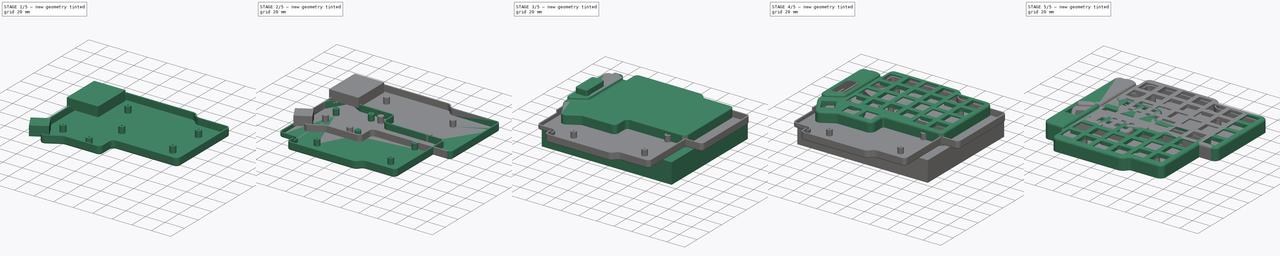
[diagram: build sequence overview — one tinted view per stage of 5, left to right]
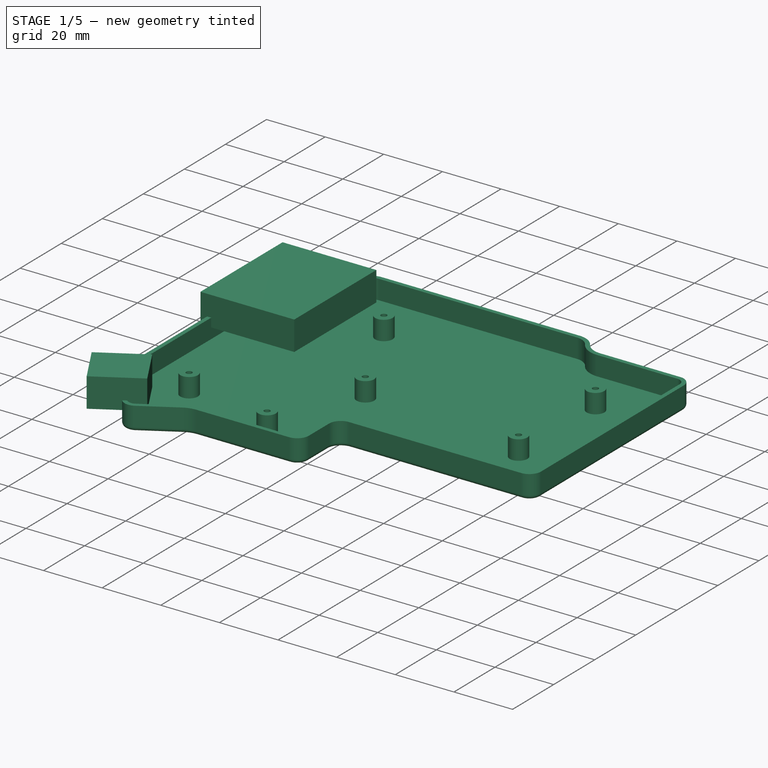
[diagram: stage 1 of 5 — iso view after this stage's code; geometry added in this stage tinted green]
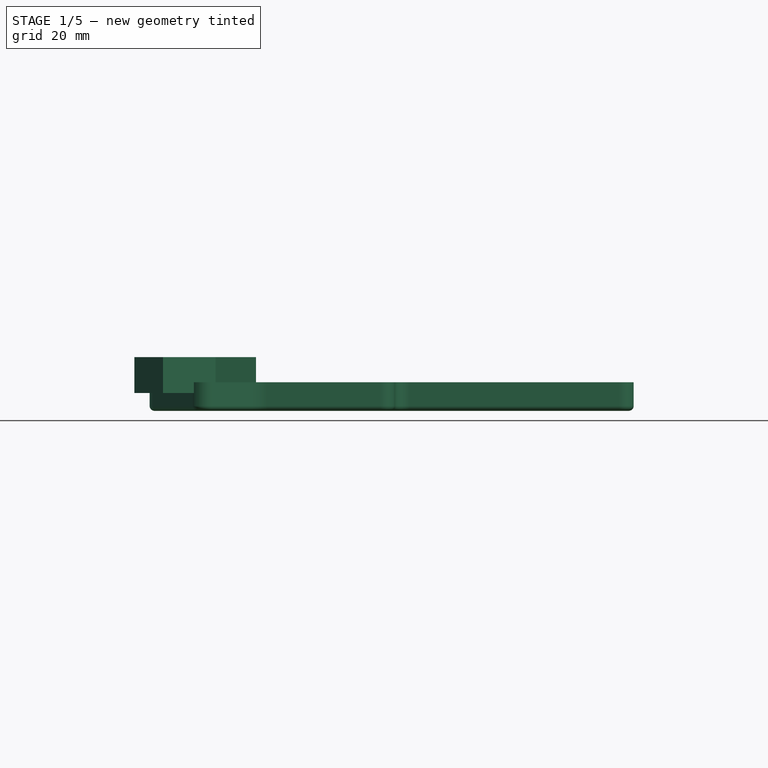
[diagram: stage 1 of 5 — front view after this stage's code; geometry added in this stage tinted green]
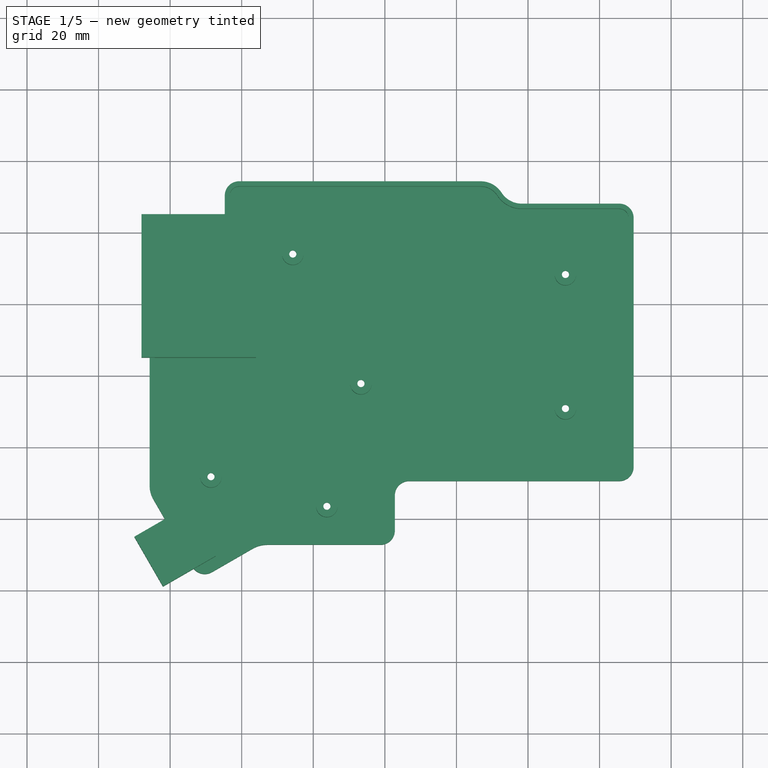
[diagram: stage 1 of 5 — top view after this stage's code; geometry added in this stage tinted green]
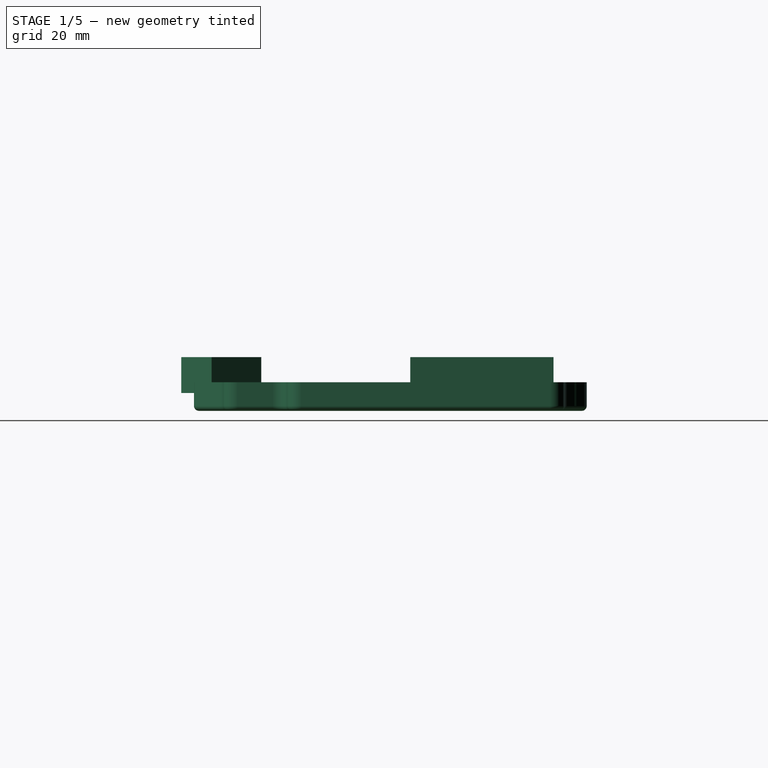
[diagram: stage 1 of 5 — right view after this stage's code; geometry added in this stage tinted green]
FCSTD DOCUMENT  (FreeCAD 0.20R29410 (Git))
Label: case
License: Public Domain
LicenseURL: http://en.wikipedia.org/wiki/Public_domain
objects: Part::Extrusion×16, Part::Cut×11, Sketcher::SketchObject×10, Part::MultiFuse×10, Part::Box×7, Part::MultiCommon×4, Part::Thickness×4, Part::Offset2D×4, Part::Fillet×3, Part::Chamfer×3, Part::Fuse×2, Part::Mirroring×2, Part::Feature×1
note: 77 computed .brp shape members not serialized (recipe doc carries the construction recipe); baked Part::Feature solids carry a one-line shape summary decoded from their .brp

FEATURE [Part::Box] Box004  label="Cube004"
  AttacherType = Attacher::AttachEngine3D
  Height = 10
  Length = 32
  Placement = pos=(-128,25,-3) rot=(0,0,1;0rad)
  Width = 40
FEATURE [Part::Box] Box005  label="Cube005"
  AttacherType = Attacher::AttachEngine3D
  Height = 10
  Length = 17
  Placement = pos=(-122,-39,-3) rot=(0,0,1;0.523599rad)
  Width = 16
FEATURE [Part::MultiFuse] Fusion014
  Shapes = -> [Box004,Box005]
FEATURE [Part::Offset2D] Offset2D002
  Fill = false
  Intersection = false
  Join = 0
  Mode = 1
  SelfIntersection = false
  Source = -> Sketch
  Value = -1.9
FEATURE [Part::Extrusion] Extrude014
  Base = -> Offset2D002
  Dir = (0,0,-1)
  DirMode = 2
  FaceMakerClass = Part::FaceMakerBullseye
  LengthFwd = 6.6
  LengthRev = 0
  Solid = true
  Symmetric = false
FEATURE [Sketcher::SketchObject] Sketch009  label="screw_inner001"
  FullyConstrained = true
  Placement = pos=(-34.735,-10.95,0) rot=(0,0,1;0rad)
  sketch-geometry (6):
    g0: Circle CenterX=-73.8496 CenterY=2.7 CenterZ=0 NormalX=0 NormalY=0 NormalZ=1 AngleXU=0 Radius=1
    g1: Circle CenterX=-31.9441 CenterY=28.7289 CenterZ=0 NormalX=0 NormalY=0 NormalZ=1 AngleXU=0 Radius=1
    g2: Circle CenterX=25.2 CenterY=59.2167 CenterZ=0 NormalX=0 NormalY=0 NormalZ=1 AngleXU=0 Radius=1
    g3: Circle CenterX=-50.9814 CenterY=64.9167 CenterZ=0 NormalX=0 NormalY=0 NormalZ=1 AngleXU=0 Radius=1
    g4: Circle CenterX=25.2 CenterY=21.7469 CenterZ=0 NormalX=0 NormalY=0 NormalZ=1 AngleXU=0 Radius=1
    g5: Circle CenterX=-41.4629 CenterY=-5.55791 CenterZ=0 NormalX=0 NormalY=0 NormalZ=1 AngleXU=0 Radius=1
  constraints (18):
    c: Radius(g3) = 1
    c: Radius(g1) = 1
    c: Radius(g2) = 1
    c: Radius(g4) = 1
    c: Radius(g0) = 1
    c: DistanceX(g0) = -73.8496
    c: DistanceY(g0) = 2.7
    c: DistanceX(g1) = -31.9441
    c: DistanceY(g1) = 28.7289
    c: DistanceX(g4) = 25.2
    c: DistanceY(g4) = 21.7469
    c: DistanceX(g2) = 25.2
    c: DistanceY(g2) = 59.2167
    c: DistanceX(g3) = -50.9814
    c: DistanceY(g3) = 64.9167
    c: Radius(g5) = 1
    c: DistanceX(g5) = -41.4629
    c: DistanceY(g5) = -5.55791
FEATURE [Part::Extrusion] Extrude016
  Base = -> Sketch009
  Dir = (0,0,1)
  DirMode = 2
  FaceMakerClass = Part::FaceMakerBullseye
  LengthFwd = 3
  LengthRev = 7
  Solid = true
  Symmetric = false
FEATURE [Part::Offset2D] Offset2D003
  Fill = false
  Intersection = false
  Join = 0
  Mode = 1
  SelfIntersection = false
  Source = -> Sketch009
  Value = 0.9
FEATURE [Part::Extrusion] Extrude017
  Base = -> Offset2D003
  Dir = (0,0,1)
  DirMode = 2
  FaceMakerClass = Part::FaceMakerBullseye
  LengthFwd = -3
  LengthRev = 9
  Solid = true
  Symmetric = false
FEATURE [Part::Chamfer] Chamfer002
  Base = -> Extrude017
  Edges = 6 edges r=1: [Edge3,Edge6,Edge9,Edge12,Edge15,Edge18]
FEATURE [Part::MultiFuse] Fusion012
  Shapes = -> [Extrude016,Chamfer002]
FEATURE [Sketcher::SketchObject] Sketch010  label="screw_outer001"
  FullyConstrained = true
  Placement = pos=(-34.735,-10.95,0) rot=(0,0,1;0rad)
  sketch-geometry (6):
    g0: Circle CenterX=-73.8496 CenterY=2.7 CenterZ=0 NormalX=0 NormalY=0 NormalZ=1 AngleXU=0 Radius=3
    g1: Circle CenterX=-31.9441 CenterY=28.7289 CenterZ=0 NormalX=0 NormalY=0 NormalZ=1 AngleXU=0 Radius=3
    g2: Circle CenterX=25.2 CenterY=59.2167 CenterZ=0 NormalX=0 NormalY=0 NormalZ=1 AngleXU=0 Radius=3
    g3: Circle CenterX=-50.9814 CenterY=64.9167 CenterZ=0 NormalX=0 NormalY=0 NormalZ=1 AngleXU=0 Radius=3
    g4: Circle CenterX=25.2 CenterY=21.7469 CenterZ=0 NormalX=0 NormalY=0 NormalZ=1 AngleXU=0 Radius=3
    g5: Circle CenterX=-41.4629 CenterY=-5.55791 CenterZ=0 NormalX=0 NormalY=0 NormalZ=1 AngleXU=0 Radius=3
  constraints (18):
    c: Radius(g3) = 3
    c: Radius(g1) = 3
    c: Radius(g2) = 3
    c: Radius(g4) = 3
    c: Radius(g0) = 3
    c: DistanceX(g0) = -73.8496
    c: DistanceY(g0) = 2.7
    c: DistanceX(g1) = -31.9441
    c: DistanceY(g1) = 28.7289
    c: DistanceX(g4) = 25.2
    c: DistanceY(g4) = 21.7469
    c: DistanceX(g2) = 25.2
    c: DistanceY(g2) = 59.2167
    c: DistanceX(g3) = -50.9814
    c: DistanceY(g3) = 64.9167
    c: Radius(g5) = 3
    c: DistanceX(g5) = -41.4629
    c: DistanceY(g5) = -5.55791
FEATURE [Part::Extrusion] Extrude015
  Base = -> Sketch010
  Dir = (0,0,1)
  DirMode = 2
  FaceMakerClass = Part::FaceMakerBullseye
  LengthFwd = 0
  LengthRev = 7
  Solid = true
  Symmetric = false
FEATURE [Part::Thickness] Thickness003
  Faces = -> Extrude014 [Face24]
  Intersection = false
  Join = 0
  Mode = 0
  SelfIntersection = false
  Value = 1.4
FEATURE [Part::MultiFuse] Fusion013
  Shapes = -> [Extrude015,Thickness003]
FEATURE [Part::Cut] Cut011
  Base = -> Fusion013
  Tool = -> Fusion012
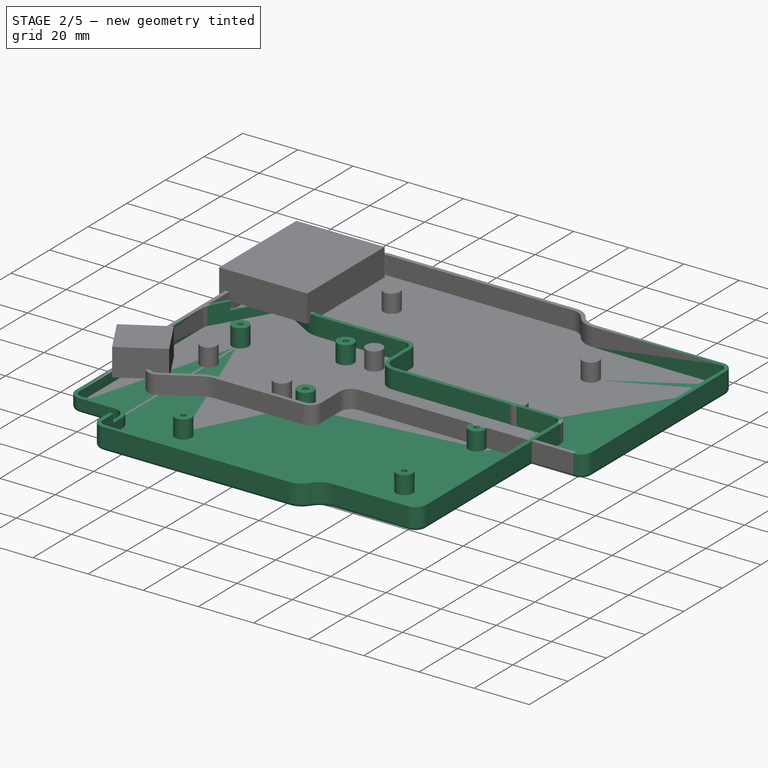
[diagram: stage 2 of 5 — iso view after this stage's code; geometry added in this stage tinted green]
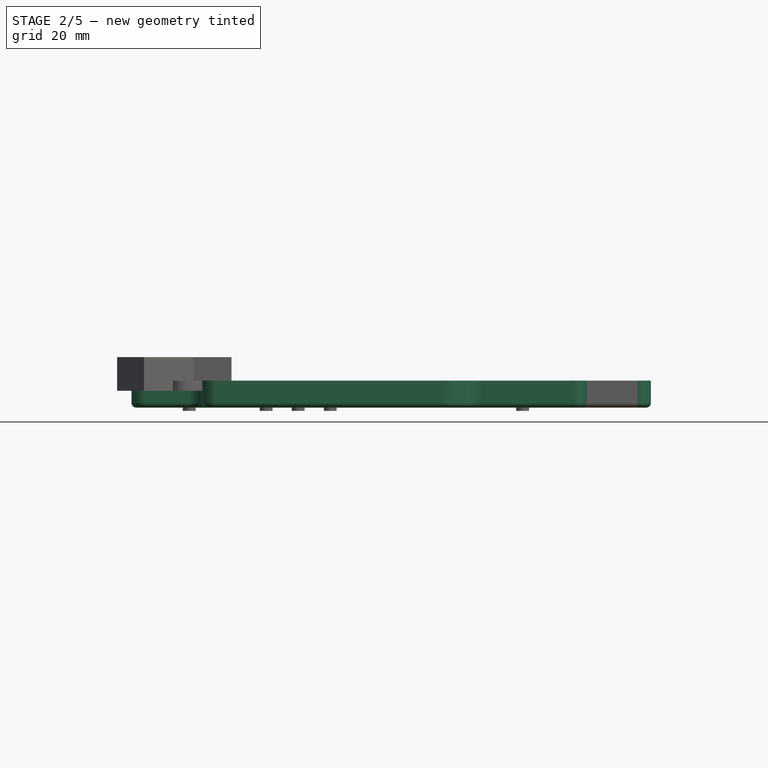
[diagram: stage 2 of 5 — front view after this stage's code; geometry added in this stage tinted green]
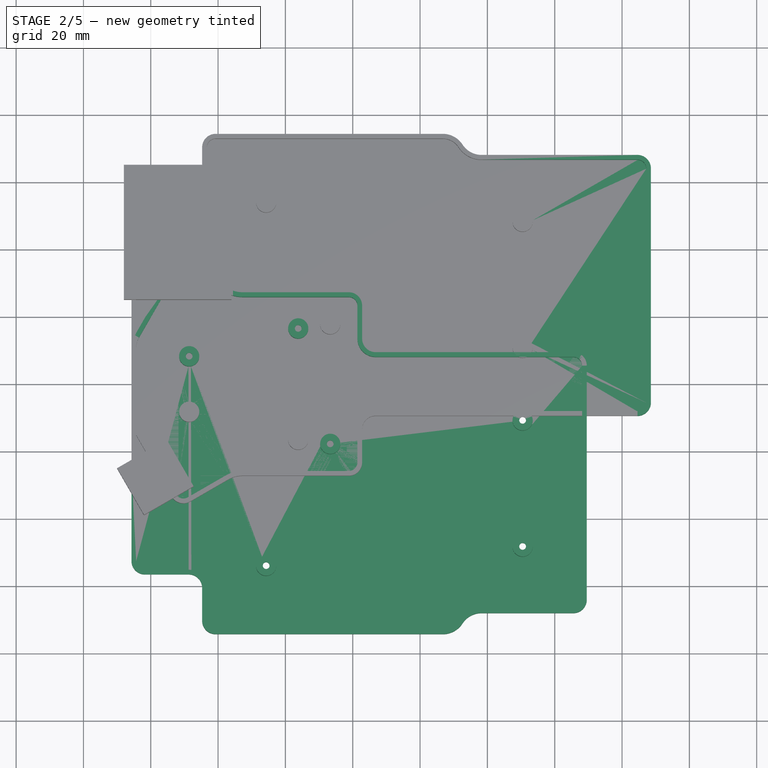
[diagram: stage 2 of 5 — top view after this stage's code; geometry added in this stage tinted green]
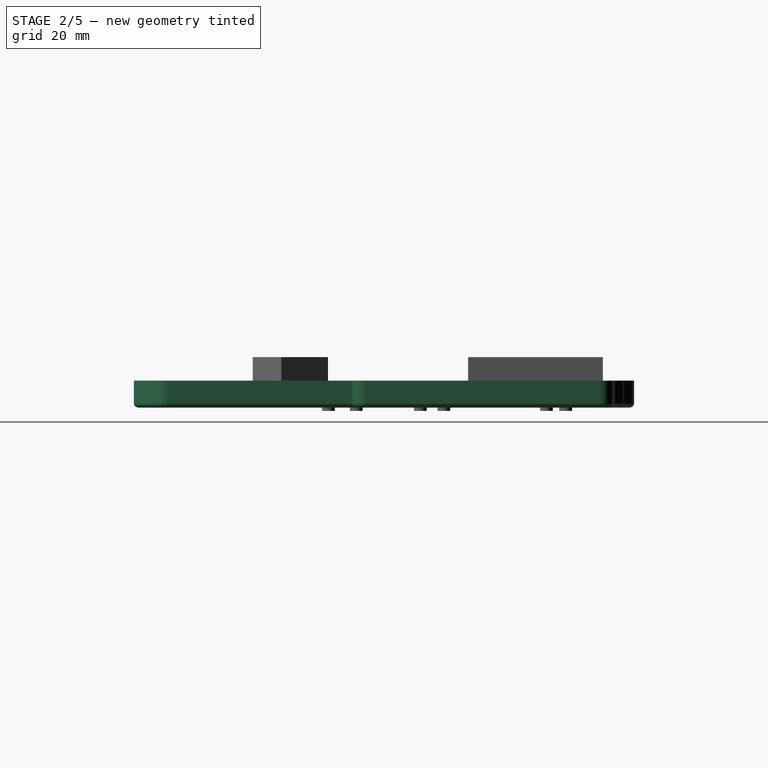
[diagram: stage 2 of 5 — right view after this stage's code; geometry added in this stage tinted green]
FEATURE [Part::Offset2D] Offset2D
  Fill = false
  Intersection = false
  Join = 0
  Mode = 1
  SelfIntersection = false
  Source = -> Sketch002
  Value = -1.9
FEATURE [Part::Extrusion] Extrude010
  Base = -> Offset2D
  Dir = (0,0,-1)
  DirMode = 2
  FaceMakerClass = Part::FaceMakerBullseye
  LengthFwd = 6.6
  LengthRev = 0
  Solid = true
  Symmetric = false
FEATURE [Part::Thickness] Thickness002
  Faces = -> Extrude010 [Face24]
  Intersection = false
  Join = 0
  Mode = 0
  SelfIntersection = false
  Value = 1.4
FEATURE [Part::Extrusion] Extrude011
  Base = -> Sketch005
  Dir = (0,0,1)
  DirMode = 2
  FaceMakerClass = Part::FaceMakerBullseye
  LengthFwd = 0
  LengthRev = 7
  Solid = true
  Symmetric = false
FEATURE [Part::Offset2D] Offset2D001
  Fill = false
  Intersection = false
  Join = 0
  Mode = 1
  SelfIntersection = false
  Source = -> Sketch001
  Value = 0.9
FEATURE [Part::Extrusion] Extrude013
  Base = -> Offset2D001
  Dir = (0,0,1)
  DirMode = 2
  FaceMakerClass = Part::FaceMakerBullseye
  LengthFwd = -3
  LengthRev = 9
  Solid = true
  Symmetric = false
FEATURE [Part::Chamfer] Chamfer001
  Base = -> Extrude013
  Edges = 6 edges r=1: [Edge3,Edge6,Edge9,Edge12,Edge15,Edge18]
FEATURE [Part::MultiFuse] Fusion010
  Shapes = -> [Extrude011,Thickness002]
FEATURE [Part::Box] Box002  label="Cube002"
  AttacherType = Attacher::AttachEngine3D
  Height = 10
  Length = 32
  Placement = pos=(-128,25,-3) rot=(0,0,1;0rad)
  Width = 40
FEATURE [Part::Box] Box003  label="Cube003"
  AttacherType = Attacher::AttachEngine3D
  Height = 10
  Length = 17
  Placement = pos=(-122,-39,-3) rot=(0,0,1;0.523599rad)
  Width = 16
FEATURE [Part::MultiFuse] Fusion011
  Shapes = -> [Box002,Box003]
FEATURE [Part::Cut] Cut012  label="Left_Base"
  Base = -> Cut011
  Tool = -> Fusion014
FEATURE [Part::Box] Box006  label="Cube006"
  AttacherType = Attacher::AttachEngine3D
  Height = 23
  Length = 147
  Placement = pos=(-131,-41,-33) rot=(0,0,1;0rad)
  Width = 123
FEATURE [Part::Mirroring] Part__Mirroring001  label="Left_with_view (Mirror #1)001"
  Base = (0,0,-10)
  Normal = (0,0,1)
  Source = -> Cut012
FEATURE [Part::MultiCommon] Common003  label="Left_Base_reoriented"
  Placement = pos=(0,0,-20) rot=(1,0,0;3.14159rad)
  Shapes = -> [Part__Mirroring001,Box006]
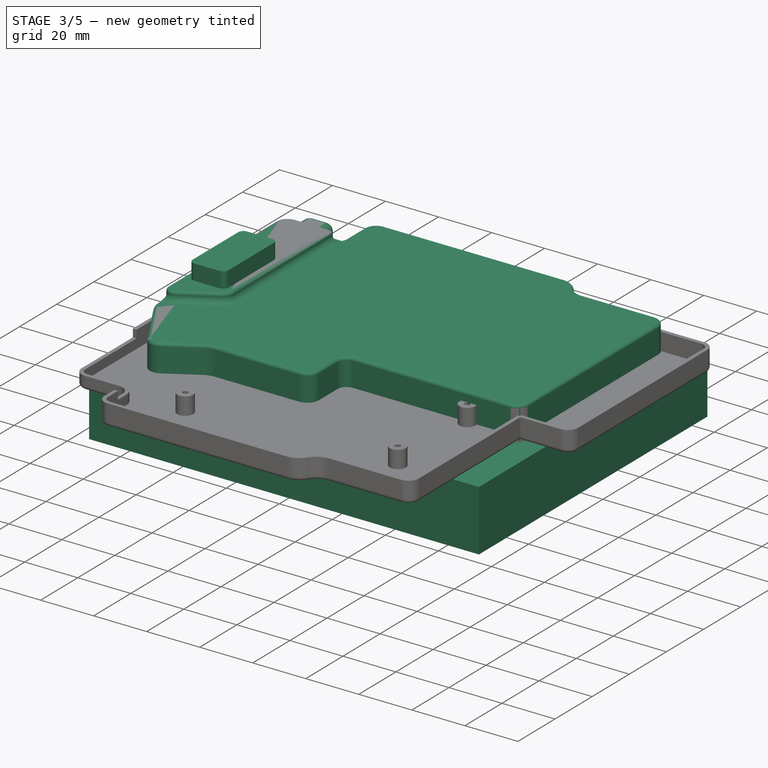
[diagram: stage 3 of 5 — iso view after this stage's code; geometry added in this stage tinted green]
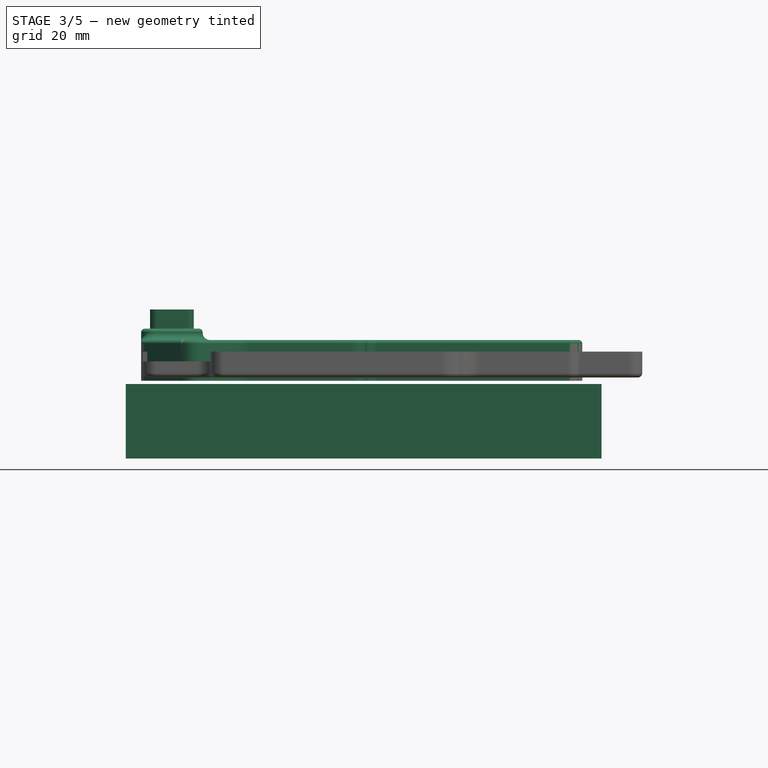
[diagram: stage 3 of 5 — front view after this stage's code; geometry added in this stage tinted green]
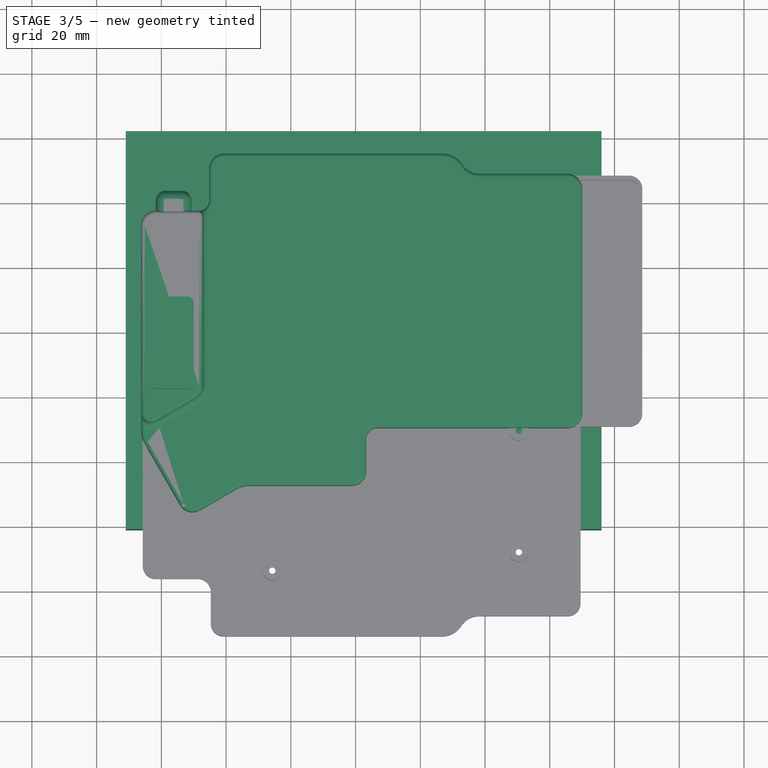
[diagram: stage 3 of 5 — top view after this stage's code; geometry added in this stage tinted green]
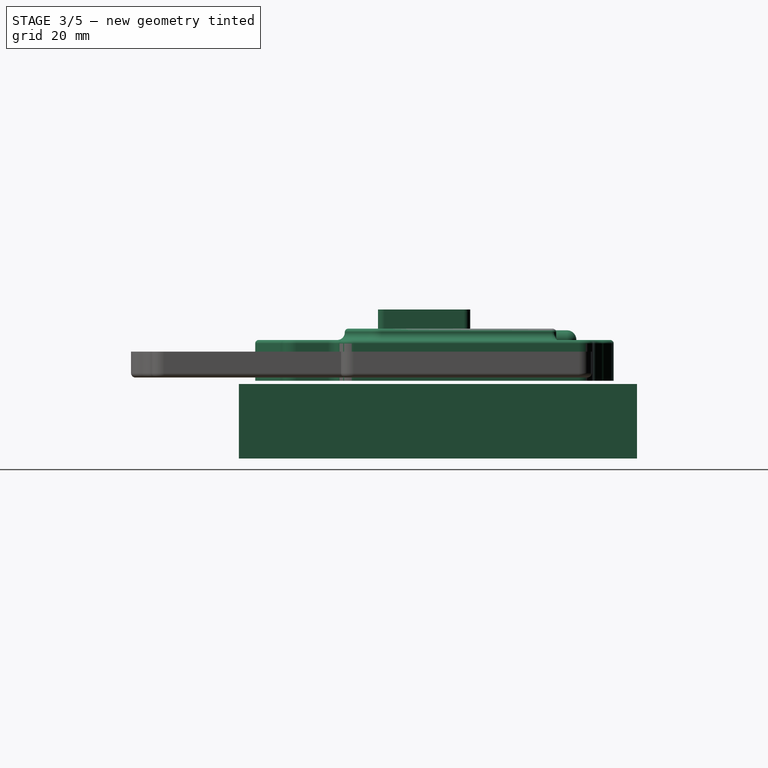
[diagram: stage 3 of 5 — right view after this stage's code; geometry added in this stage tinted green]
FEATURE [Sketcher::SketchObject] Sketch007
  FullyConstrained = true
  Placement = pos=(-34.735,-10.95,0) rot=(0,0,1;0rad)
  expr: Constraints[17] = <<Right>>.Constraints.osx
  expr: Constraints[18] = <<Right>>.Constraints.osy
  sketch-geometry (8):
    g0: ArcOfCircle CenterX=-87 CenterY=63.4974 CenterZ=0 NormalX=0 NormalY=0 NormalZ=1 AngleXU=0 Radius=4.5 StartAngle=1.5708 EndAngle=3.14159
    g1: LineSegment StartX=-91.5 StartY=63.4974 StartZ=0 EndX=-91.5 EndY=5.67585 EndZ=0
    g2: LineSegment StartX=-72.5 StartY=66.4974 StartZ=0 EndX=-72.5 EndY=14.0474 EndZ=0
    g3: LineSegment StartX=-74.75 StartY=10.1503 StartZ=0 EndX=-87 EndY=3.07777 EndZ=0
    g4: ArcOfCircle CenterX=-88.5 CenterY=5.67585 CenterZ=0 NormalX=0 NormalY=0 NormalZ=1 AngleXU=0 Radius=3 StartAngle=3.14159 EndAngle=5.23599
    g5: ArcOfCircle CenterX=-77 CenterY=14.0474 CenterZ=0 NormalX=0 NormalY=0 NormalZ=1 AngleXU=0 Radius=4.5 StartAngle=5.23599 EndAngle=6.28319
    g6: ArcOfCircle CenterX=-74 CenterY=66.4974 CenterZ=0 NormalX=0 NormalY=0 NormalZ=1 AngleXU=0 Radius=1.5 StartAngle=-6.57e-14 EndAngle=1.5708
    g7: LineSegment StartX=-87 StartY=67.9974 StartZ=0 EndX=-74 EndY=67.9974 EndZ=0
  constraints (20):
    c: Vertical(g1)
    c: Vertical(g2)
    c: Angle(g3,g-1) = 2.61799
    c: Horizontal(g7)
    c: Tangent(g0,g7) = 1.5708
    c: Tangent(g6,g7) = 1.5708
    c: Tangent(g2,g6) = 1.5708
    c: Tangent(g0,g1) = -1.5708
    c: Tangent(g1,g4) = -1.5708
    c: Tangent(g3,g4) = 1.5708
    c: Tangent(g3,g5) = 1.5708
    c: Tangent(g2,g5) = 1.5708
    c: DistanceX(g0,g2) = 19
    c: Radius(g0) = 4.5
    c: Radius(g6) = 1.5
    c: Radius(g4) = 3
    c: Radius(g5) = 4.5
    c: DistanceX(g6) = -74
    c: DistanceY(g6) = 67.9974
    c: DistanceY(g2,g2) = 52.45
FEATURE [Part::Extrusion] Extrude006  label="module_inner"
  Base = -> Sketch007
  Dir = (0,0,1)
  DirMode = 2
  FaceMakerClass = Part::FaceMakerBullseye
  LengthFwd = 7.1
  LengthRev = 0
  Solid = true
  Symmetric = false
FEATURE [Part::Extrusion] Extrude008  label="board_inner_left"
  Base = -> Sketch
  Dir = (0,0,1)
  DirMode = 2
  FaceMakerClass = Part::FaceMakerBullseye
  LengthFwd = 3.6
  LengthRev = 9
  Solid = true
  Symmetric = false
FEATURE [Part::MultiFuse] Fusion007  label="inner_all001"
  Shapes = -> [Extrude008,Extrude006]
FEATURE [Part::Fillet] Fillet007  label="inner_capped001"
  Base = -> Fusion007
  Edges = 34 edges: [Edge29 r=1.1,Edge35 r=1.1,Edge37 r=1.1,Edge39 r=1.1,Edge41 r=1.1,Edge43 r=1.1,Edge45 r=1.1,Edge47 r=1.1,Edge49 r=1.1,Edge51 r=1.1,Edge53 r=1.1,Edge55 r=1.1,Edge57 r=1.1,Edge59 r=1.1,Edge61 r=1.1,Edge63 r=1.1,Edge65 r=1.1,Edge67 r=1.1,Edge69 r=1.1,Edge71 r=1.1,Edge74 r=1.1,Edge75 r=2.3,Edge76 r=2.3,Edge77 r=2.3,Edge78 r=2.3,Edge79 r=2.3,Edge81 r=1.1,Edge87 r=1.1,Edge89 r=1.1,Edge92 r=1.1,Edge93 r=1.1,Edge95 r=1.1,Edge96 r=1.1,Edge97 r=1.1]
FEATURE [Sketcher::SketchObject] Sketch008
  FullyConstrained = true
  MapMode = 2
  Placement = pos=(-0.53,0,0) rot=(0,0,1;0rad)
  sketch-geometry (8):
    g0: LineSegment StartX=-111.455 StartY=30.5 StartZ=0 EndX=-120.955 EndY=30.5 EndZ=0
    g1: LineSegment StartX=-122.955 StartY=28.5 StartZ=0 EndX=-122.955 EndY=4 EndZ=0
    g2: LineSegment StartX=-120.955 StartY=2 StartZ=0 EndX=-111.455 EndY=2 EndZ=0
    g3: LineSegment StartX=-109.455 StartY=4 StartZ=0 EndX=-109.455 EndY=28.5 EndZ=0
    g4: ArcOfCircle CenterX=-120.955 CenterY=4 CenterZ=0 NormalX=0 NormalY=0 NormalZ=1 AngleXU=0 Radius=2 StartAngle=3.14159 EndAngle=4.71239
    g5: ArcOfCircle CenterX=-111.455 CenterY=4 CenterZ=0 NormalX=0 NormalY=0 NormalZ=1 AngleXU=0 Radius=2 StartAngle=4.71239 EndAngle=6.28319
    g6: ArcOfCircle CenterX=-111.455 CenterY=28.5 CenterZ=0 NormalX=0 NormalY=0 NormalZ=1 AngleXU=0 Radius=2 StartAngle=3e-16 EndAngle=1.5708
    g7: ArcOfCircle CenterX=-120.955 CenterY=28.5 CenterZ=0 NormalX=0 NormalY=0 NormalZ=1 AngleXU=0 Radius=2 StartAngle=1.5708 EndAngle=3.14159
  constraints (20):
    c: Horizontal(g0)
    c: Horizontal(g2)
    c: Vertical(g1)
    c: Vertical(g3)
    c: DistanceX(g0,g-1) = 111.455
    c: DistanceY(g-1,g1) = 4
    c: DistanceY(g1,g1) = 24.5
    c: DistanceX(g0,g0) = 9.5
    c: Radius(g7) = 2
    c: Radius(g4) = 2
    c: Radius(g5) = 2
    c: Radius(g6) = 2
    c: Tangent(g1,g7) = -1.5708
    c: Tangent(g0,g7) = -1.5708
    c: Tangent(g0,g6) = -1.5708
    c: Tangent(g6,g3) = -1.5708
    c: Tangent(g2,g5) = -1.5708
    c: Tangent(g2,g4) = -1.5708
    c: Tangent(g4,g1) = -1.5708
    c: Tangent(g3,g5) = -1.5708
FEATURE [Part::Extrusion] Extrude009
  Base = -> Sketch008
  Dir = (0,0,1)
  DirMode = 2
  FaceMakerClass = Part::FaceMakerBullseye
  LengthFwd = 13
  LengthRev = 0
  Solid = true
  Symmetric = false
FEATURE [Part::Box] Box  label="Cube"
  AttacherType = Attacher::AttachEngine3D
  Height = 23
  Length = 147
  Placement = pos=(-131,-41,-33) rot=(0,0,1;0rad)
  Width = 123
FEATURE [Part::Box] Box001  label="Cube001"
  AttacherType = Attacher::AttachEngine3D
  Height = 7.1
  Length = 11
  Placement = pos=(-121.728,52.28,-0.5) rot=(0,0,1;0rad)
  Width = 11
FEATURE [Part::Fillet] Fillet
  Base = -> Box001
  Edges = 12 edges r=2.95: [Edge1,Edge2,Edge3,Edge4,Edge5,Edge6,Edge7,Edge8,Edge9,Edge10,Edge11,Edge12]
FEATURE [Part::Extrusion] Extrude012
  Base = -> Sketch001
  Dir = (0,0,1)
  DirMode = 2
  FaceMakerClass = Part::FaceMakerBullseye
  LengthFwd = 3
  LengthRev = 7
  Solid = true
  Symmetric = false
FEATURE [Part::MultiFuse] Fusion009
  Shapes = -> [Extrude012,Chamfer001]
FEATURE [Part::Cut] Cut009
  Base = -> Fusion010
  Tool = -> Fusion009
FEATURE [Part::Cut] Cut010  label="Right_Base"
  Base = -> Cut009
  Tool = -> Fusion011
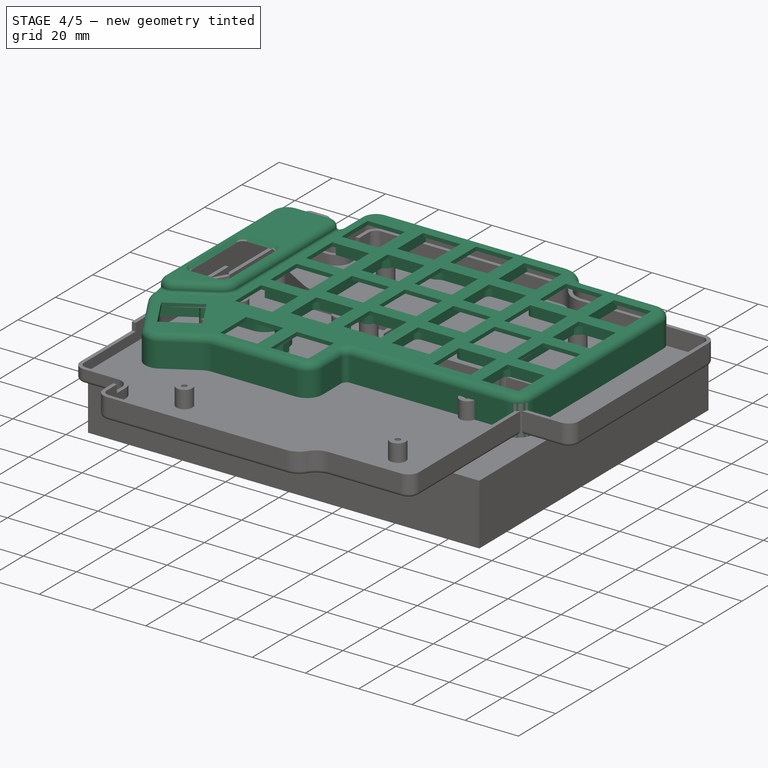
[diagram: stage 4 of 5 — iso view after this stage's code; geometry added in this stage tinted green]
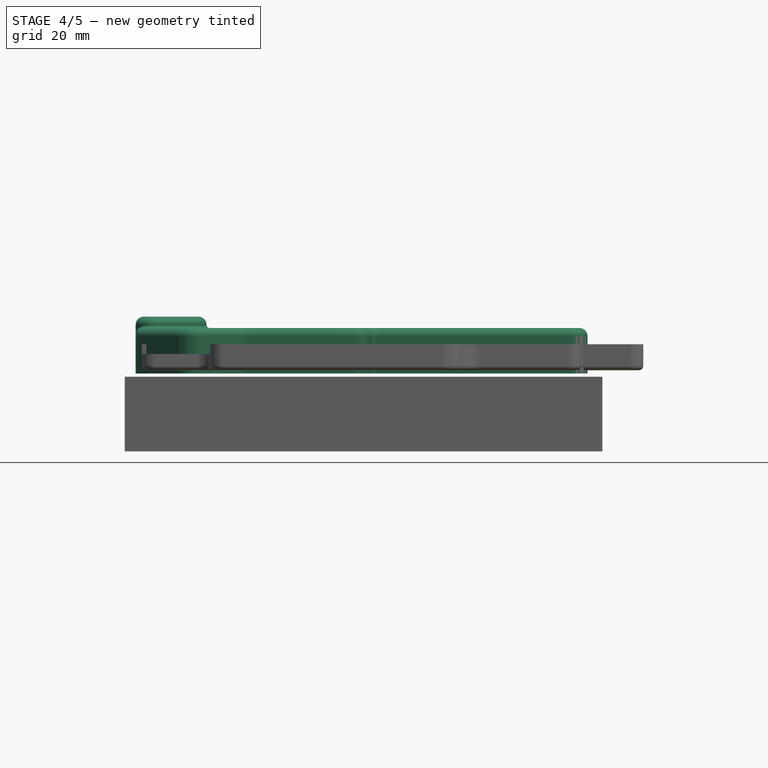
[diagram: stage 4 of 5 — front view after this stage's code; geometry added in this stage tinted green]
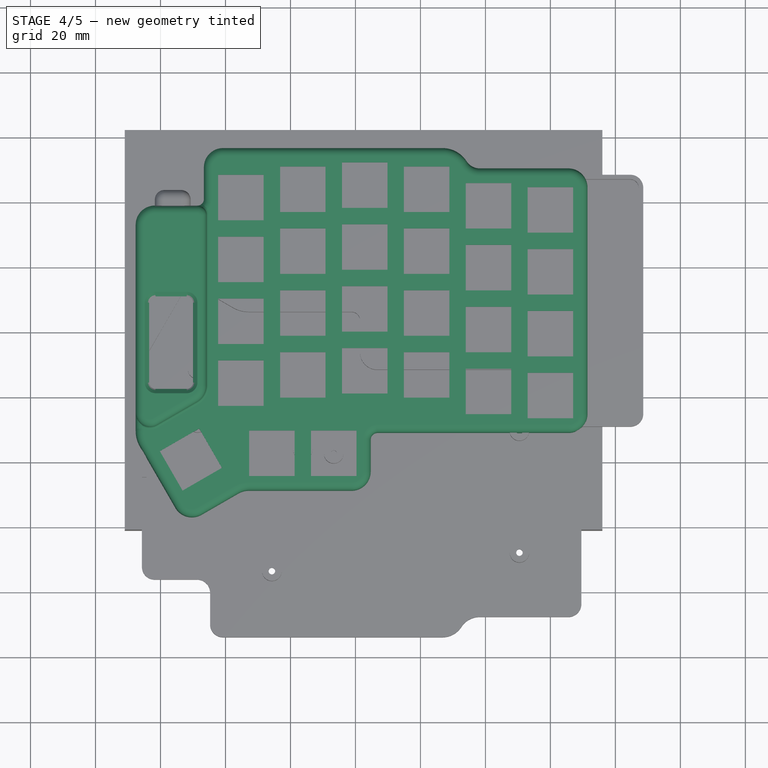
[diagram: stage 4 of 5 — top view after this stage's code; geometry added in this stage tinted green]
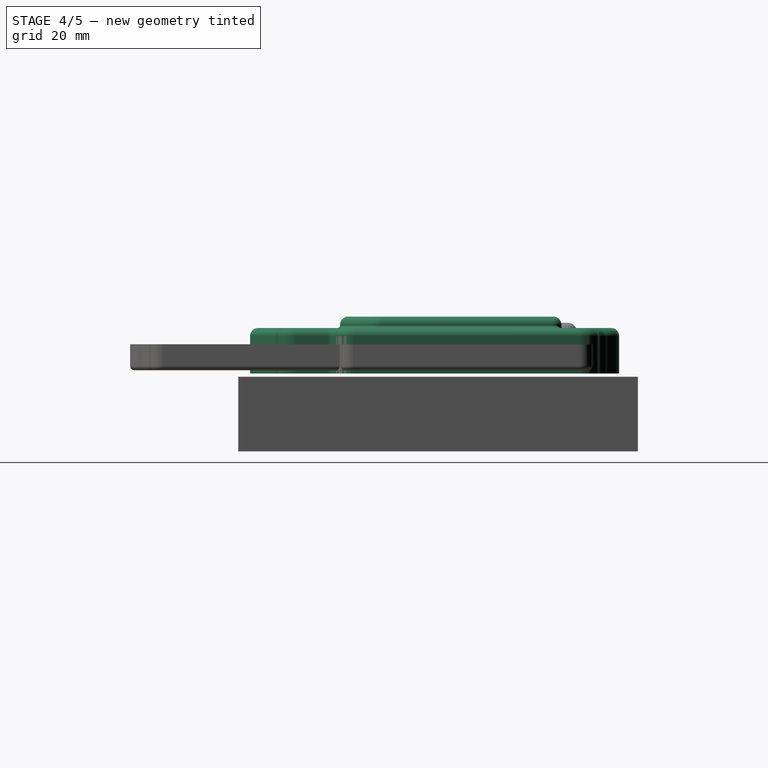
[diagram: stage 4 of 5 — right view after this stage's code; geometry added in this stage tinted green]
FEATURE [Part::Feature] Part__Feature059  label="prelude PCB001"
  Placement = pos=(-116.205,45.72,0) rot=(0,0,1;3.14159rad)
  shape: bbox 177.2 x 190.4 x 1.29 mm, 455 faces (baked)
FEATURE [Sketcher::SketchObject] Sketch  label="Left"
  FullyConstrained = true
  Placement = pos=(-34.735,-10.95,0) rot=(0,0,1;0rad)
  sketch-geometry (23):
    g0: LineSegment StartX=-66 StartY=85.7544 StartZ=0 EndX=1.5 EndY=85.7544 EndZ=0
    g1: LineSegment StartX=12.9992 StartY=79.5 StartZ=0 EndX=40.2592 EndY=79.5 EndZ=0
    g2: LineSegment StartX=44.7592 StartY=75 StartZ=0 EndX=44.7592 EndY=5.5 EndZ=0
    g3: LineSegment StartX=40.2592 StartY=1 StartZ=0 EndX=-18.4708 EndY=1 EndZ=0
    g4: LineSegment StartX=-21.9708 StartY=-2.5 StartZ=0 EndX=-21.9708 EndY=-12.3 EndZ=0
    g5: LineSegment StartX=-26.4708 StartY=-16.8 StartZ=0 EndX=-58.0357 EndY=-16.8 EndZ=0
    g6: LineSegment StartX=-62.0357 StartY=-17.8718 StartZ=0 EndX=-73.3293 EndY=-24.3922 EndZ=0
    g7: LineSegment StartX=-79.4764 StartY=-22.745 StartZ=0 EndX=-90.4215 EndY=-3.78749 EndZ=0
    g8: LineSegment StartX=-91.5 StartY=0.237424 StartZ=0 EndX=-91.5 EndY=63.4974 EndZ=0
    g9: LineSegment StartX=-87 StartY=67.9974 StartZ=0 EndX=-74 EndY=67.9974 EndZ=0
    g10: LineSegment StartX=-70.5 StartY=71.4974 StartZ=0 EndX=-70.5 EndY=81.2544 EndZ=0
    g11: ArcOfCircle CenterX=-74 CenterY=71.4974 CenterZ=0 NormalX=0 NormalY=0 NormalZ=1 AngleXU=0 Radius=3.5 StartAngle=4.71239 EndAngle=6.28319
    g12: ArcOfCircle CenterX=-66 CenterY=81.2544 CenterZ=0 NormalX=0 NormalY=0 NormalZ=1 AngleXU=0 Radius=4.5 StartAngle=1.5708 EndAngle=3.14159
    g13: ArcOfCircle CenterX=-87 CenterY=63.4974 CenterZ=0 NormalX=0 NormalY=0 NormalZ=1 AngleXU=0 Radius=4.5 StartAngle=1.5708 EndAngle=3.14159
    g14: ArcOfCircle CenterX=1.5 CenterY=78.3044 CenterZ=0 NormalX=0 NormalY=0 NormalZ=1 AngleXU=0 Radius=7.45 StartAngle=0.574508 EndAngle=1.5708
    g15: ArcOfCircle CenterX=12.9992 CenterY=85.7483 CenterZ=0 NormalX=0 NormalY=0 NormalZ=1 AngleXU=0 Radius=6.24832 StartAngle=3.7161 EndAngle=4.71239
    g16: ArcOfCircle CenterX=40.2592 CenterY=75 CenterZ=0 NormalX=0 NormalY=0 NormalZ=1 AngleXU=0 Radius=4.5 StartAngle=3e-16 EndAngle=1.5708
    g17: ArcOfCircle CenterX=40.2592 CenterY=5.5 CenterZ=0 NormalX=0 NormalY=0 NormalZ=1 AngleXU=0 Radius=4.5 StartAngle=4.71239 EndAngle=6.28319
    g18: ArcOfCircle CenterX=-18.4708 CenterY=-2.5 CenterZ=0 NormalX=0 NormalY=0 NormalZ=1 AngleXU=0 Radius=3.5 StartAngle=1.5708 EndAngle=3.14159
    g19: ArcOfCircle CenterX=-26.4708 CenterY=-12.3 CenterZ=0 NormalX=0 NormalY=0 NormalZ=1 AngleXU=0 Radius=4.5 StartAngle=4.71239 EndAngle=6.28319
    g20: ArcOfCircle CenterX=-75.5793 CenterY=-20.495 CenterZ=0 NormalX=0 NormalY=0 NormalZ=1 AngleXU=0 Radius=4.5 StartAngle=3.66519 EndAngle=5.23599
    g21: ArcOfCircle CenterX=-83.4502 CenterY=0.237424 CenterZ=0 NormalX=0 NormalY=0 NormalZ=1 AngleXU=0 Radius=8.04982 StartAngle=3.14159 EndAngle=3.66519
    g22: ArcOfCircle CenterX=-58.0357 CenterY=-24.8 CenterZ=0 NormalX=0 NormalY=0 NormalZ=1 AngleXU=0 Radius=8 StartAngle=1.5708 EndAngle=2.0944
  constraints (58):
    c: Horizontal(g0)
    c: Horizontal(g1)
    c: Vertical(g2)
    c: Horizontal(g3)
    c: Vertical(g4)
    c: Horizontal(g5)
    c: Vertical(g8)
    c: Horizontal(g9)
    c: Vertical(g10)
    c: Tangent(g14,g15) = 1.5708
    c: Tangent(g15,g1) = -1.5708
    c: Tangent(g16,g1) = 1.5708
    c: Tangent(g16,g2) = 1.5708
    c: Tangent(g14,g0) = 1.5708
    c: Tangent(g17,g2) = 1.5708
    c: Tangent(g17,g3) = 1.5708
    c: Tangent(g18,g3) = -1.5708
    c: Tangent(g18,g4) = -1.5708
    c: Tangent(g19,g4) = 1.5708
    c: Tangent(g19,g5) = 1.5708
    c: Tangent(g20,g6) = 1.5708
    c: Tangent(g21,g7) = 1.5708
    c: Tangent(g21,g8) = 1.5708
    c: Tangent(g0,g12) = 1.5708
    c: Tangent(g12,g10) = 1.5708
    c: Tangent(g11,g10) = -1.5708
    c: Tangent(g11,g9) = -1.5708
    c: Tangent(g13,g9) = 1.5708
    c: Tangent(g13,g8) = 1.5708
    c: Tangent(g22,g5) = -1.5708
    c: Tangent(g22,g6) = -1.5708
    c: Radius(g19) = 4.5
    c: Radius(g17) = 4.5
    c: Radius(g16) = 4.5
    c: Radius(g12) = 4.5
    c: Radius(g11) = 3.5
    c: Radius(g13) = 4.5
    c: Radius(g18) = 3.5
    c: DistanceX(g1) = 40.2592
    c: DistanceY(g1) = 79.5
    c: DistanceX(g1,g1) = 27.26
    c: DistanceY(g4,g4) = 9.8
    c: DistanceX(g3,g3) = 58.73
    c: Tangent(g7,g20) = 1.5708
    c: Radius(g20) = 4.5
    c: Perpendicular(g6,g7)
    c: DistanceX(g8) = -91.5
    c: DistanceY(g8) = 0.237424
    c: Angle(g7) = 2.0944
    c: DistanceX(g7) = -79.4764
    c: DistanceY(g7) = -22.745
    c: DistanceX(g0) = 1.5
    c: DistanceY(g0) = 85.7544
    c: Radius(g14) = 7.45
    c: DistanceY(g2,g2) = 69.5
    c: DistanceY(g8,g8) = 63.26
    c: DistanceX(g9,g9) = 13
    c: Radius(g22) = 8
FEATURE [Sketcher::SketchObject] Sketch001  label="screw_inner"
  FullyConstrained = true
  Placement = pos=(-34.735,-10.95,0) rot=(0,0,1;0rad)
  sketch-geometry (6):
    g0: Circle CenterX=-73.8496 CenterY=2.7 CenterZ=0 NormalX=0 NormalY=0 NormalZ=1 AngleXU=0 Radius=1
    g1: Circle CenterX=-31.9441 CenterY=28.7289 CenterZ=0 NormalX=0 NormalY=0 NormalZ=1 AngleXU=0 Radius=1
    g2: Circle CenterX=25.2 CenterY=59.2167 CenterZ=0 NormalX=0 NormalY=0 NormalZ=1 AngleXU=0 Radius=1
    g3: Circle CenterX=-50.9814 CenterY=64.9167 CenterZ=0 NormalX=0 NormalY=0 NormalZ=1 AngleXU=0 Radius=1
    g4: Circle CenterX=25.2 CenterY=21.7469 CenterZ=0 NormalX=0 NormalY=0 NormalZ=1 AngleXU=0 Radius=1
    g5: Circle CenterX=-41.4629 CenterY=-5.55791 CenterZ=0 NormalX=0 NormalY=0 NormalZ=1 AngleXU=0 Radius=1
  constraints (18):
    c: Radius(g3) = 1
    c: Radius(g1) = 1
    c: Radius(g2) = 1
    c: Radius(g4) = 1
    c: Radius(g0) = 1
    c: DistanceX(g0) = -73.8496
    c: DistanceY(g0) = 2.7
    c: DistanceX(g1) = -31.9441
    c: DistanceY(g1) = 28.7289
    c: DistanceX(g4) = 25.2
    c: DistanceY(g4) = 21.7469
    c: DistanceX(g2) = 25.2
    c: DistanceY(g2) = 59.2167
    c: DistanceX(g3) = -50.9814
    c: DistanceY(g3) = 64.9167
    c: Radius(g5) = 1
    c: DistanceX(g5) = -41.4629
    c: DistanceY(g5) = -5.55791
FEATURE [Sketcher::SketchObject] Sketch002  label="Right"
  FullyConstrained = true
  Placement = pos=(-34.735,-10.95,0) rot=(0,0,1;0rad)
  sketch-geometry (23):
    g0: LineSegment StartX=-66 StartY=85.7544 StartZ=0 EndX=1.5 EndY=85.7544 EndZ=0
    g1: LineSegment StartX=12.9992 StartY=79.5 StartZ=0 EndX=59.3092 EndY=79.5 EndZ=0
    g2: LineSegment StartX=63.8092 StartY=75 StartZ=0 EndX=63.8092 EndY=5.5 EndZ=0
    g3: LineSegment StartX=59.3092 StartY=1 StartZ=0 EndX=-18.4708 EndY=1 EndZ=0
    g4: LineSegment StartX=-21.9708 StartY=-2.5 StartZ=0 EndX=-21.9708 EndY=-12.3 EndZ=0
    g5: LineSegment StartX=-26.4708 StartY=-16.8 StartZ=0 EndX=-58.0357 EndY=-16.8 EndZ=0
    g6: LineSegment StartX=-62.0357 StartY=-17.8718 StartZ=0 EndX=-73.3293 EndY=-24.3922 EndZ=0
    g7: LineSegment StartX=-79.4764 StartY=-22.745 StartZ=0 EndX=-90.4215 EndY=-3.78749 EndZ=0
    g8: LineSegment StartX=-91.5 StartY=0.237424 StartZ=0 EndX=-91.5 EndY=63.4974 EndZ=0
    g9: LineSegment StartX=-87 StartY=67.9974 StartZ=0 EndX=-74 EndY=67.9974 EndZ=0
    g10: LineSegment StartX=-70.5 StartY=71.4974 StartZ=0 EndX=-70.5 EndY=81.2544 EndZ=0
    g11: ArcOfCircle CenterX=-74 CenterY=71.4974 CenterZ=0 NormalX=0 NormalY=0 NormalZ=1 AngleXU=0 Radius=3.5 StartAngle=4.71239 EndAngle=6.28319
    g12: ArcOfCircle CenterX=-66 CenterY=81.2544 CenterZ=0 NormalX=0 NormalY=0 NormalZ=1 AngleXU=0 Radius=4.5 StartAngle=1.5708 EndAngle=3.14159
    g13: ArcOfCircle CenterX=-87 CenterY=63.4974 CenterZ=0 NormalX=0 NormalY=0 NormalZ=1 AngleXU=0 Radius=4.5 StartAngle=1.5708 EndAngle=3.14159
    g14: ArcOfCircle CenterX=1.5 CenterY=78.3044 CenterZ=0 NormalX=0 NormalY=0 NormalZ=1 AngleXU=0 Radius=7.45 StartAngle=0.574508 EndAngle=1.5708
    g15: ArcOfCircle CenterX=12.9992 CenterY=85.7483 CenterZ=0 NormalX=0 NormalY=0 NormalZ=1 AngleXU=0 Radius=6.24832 StartAngle=3.7161 EndAngle=4.71239
    g16: ArcOfCircle CenterX=59.3092 CenterY=75 CenterZ=0 NormalX=0 NormalY=0 NormalZ=1 AngleXU=0 Radius=4.5 StartAngle=-9e-16 EndAngle=1.5708
    g17: ArcOfCircle CenterX=59.3092 CenterY=5.5 CenterZ=0 NormalX=0 NormalY=0 NormalZ=1 AngleXU=0 Radius=4.5 StartAngle=4.71239 EndAngle=6.28319
    g18: ArcOfCircle CenterX=-18.4708 CenterY=-2.5 CenterZ=0 NormalX=0 NormalY=0 NormalZ=1 AngleXU=0 Radius=3.5 StartAngle=1.5708 EndAngle=3.14159
    g19: ArcOfCircle CenterX=-26.4708 CenterY=-12.3 CenterZ=0 NormalX=0 NormalY=0 NormalZ=1 AngleXU=0 Radius=4.5 StartAngle=4.71239 EndAngle=6.28319
    g20: ArcOfCircle CenterX=-75.5793 CenterY=-20.495 CenterZ=0 NormalX=0 NormalY=0 NormalZ=1 AngleXU=0 Radius=4.5 StartAngle=3.66519 EndAngle=5.23599
    g21: ArcOfCircle CenterX=-83.4502 CenterY=0.237424 CenterZ=0 NormalX=0 NormalY=0 NormalZ=1 AngleXU=0 Radius=8.04982 StartAngle=3.14159 EndAngle=3.66519
    g22: ArcOfCircle CenterX=-58.0357 CenterY=-24.8 CenterZ=0 NormalX=0 NormalY=0 NormalZ=1 AngleXU=0 Radius=8 StartAngle=1.5708 EndAngle=2.0944
  constraints (60):
    c: Horizontal(g0)
    c: Horizontal(g1)
    c: Vertical(g2)
    c: Horizontal(g3)
    c: Vertical(g4)
    c: Horizontal(g5)
    c: Vertical(g8)
    c: Horizontal(g9)
    c: Vertical(g10)
    c: Tangent(g14,g15) = 1.5708
    c: Tangent(g15,g1) = -1.5708
    c: Tangent(g16,g1) = 1.5708
    c: Tangent(g16,g2) = 1.5708
    c: Tangent(g14,g0) = 1.5708
    c: Tangent(g17,g2) = 1.5708
    c: Tangent(g17,g3) = 1.5708
    c: Tangent(g18,g3) = -1.5708
    c: Tangent(g18,g4) = -1.5708
    c: Tangent(g19,g4) = 1.5708
    c: Tangent(g19,g5) = 1.5708
    c: Tangent(g20,g6) = 1.5708
    c: Tangent(g21,g7) = 1.5708
    c: Tangent(g21,g8) = 1.5708
    c: Tangent(g0,g12) = 1.5708
    c: Tangent(g12,g10) = 1.5708
    c: Tangent(g11,g10) = -1.5708
    c: Tangent(g11,g9) = -1.5708
    c: Tangent(g13,g9) = 1.5708
    c: Tangent(g13,g8) = 1.5708
    c: Tangent(g22,g5) = -1.5708
    c: Tangent(g22,g6) = -1.5708
    c: Radius(g19) = 4.5
    c: Radius(g17) = 4.5
    c: Radius(g16) = 4.5
    c: Radius(g12) = 4.5
    c: Radius(g11) = 3.5
    c: Radius(g13) = 4.5
    c: Radius(g18) = 3.5
    c: DistanceY(g1) = 79.5
    c: DistanceX(g1,g1) = 46.31
    c: DistanceY(g4,g4) = 9.8
    c: DistanceX(g3,g3) = 77.78
    c: Tangent(g7,g20) = 1.5708
    c: Radius(g20) = 4.5
    c: Perpendicular(g6,g7)
    c: DistanceX(g8) = -91.5
    c: DistanceY(g8) = 0.237424
    c: Angle(g7) = 2.0944
    c: DistanceX(g7) = -79.4764
    c: DistanceY(g7) = -22.745
    c: DistanceX(g0) = 1.5
    c: DistanceY(g0) = 85.7544
    c: Radius(g14) = 7.45
    c: DistanceY(g2,g2) = 69.5
    c: DistanceY(g8,g8) = 63.26
    c: DistanceX(g9,g9) = 13
    c: Radius(g22) = 8
    c: DistanceX(g1) = 12.9992
    c: DistanceX(g9) = -74  'osx'
    c: DistanceY(g9) = 67.9974  'osy'
FEATURE [Sketcher::SketchObject] Sketch004
  FullyConstrained = true
  MapMode = 2
  sketch-geometry (130):
    g0: LineSegment StartX=-7 StartY=7 StartZ=0 EndX=7 EndY=7 EndZ=0
    g1: LineSegment StartX=7 StartY=7 StartZ=0 EndX=7 EndY=-7 EndZ=0
    g2: LineSegment StartX=7 StartY=-7 StartZ=0 EndX=-7 EndY=-7 EndZ=0
    g3: LineSegment StartX=-7 StartY=-7 StartZ=0 EndX=-7 EndY=7 EndZ=0
    g4: LineSegment StartX=-26.05 StartY=8.27 StartZ=0 EndX=-12.05 EndY=8.27 EndZ=0
    g5: LineSegment StartX=-12.05 StartY=8.27 StartZ=0 EndX=-12.05 EndY=-5.73 EndZ=0
    g6: LineSegment StartX=-12.05 StartY=-5.73 StartZ=0 EndX=-26.05 EndY=-5.73 EndZ=0
    g7: LineSegment StartX=-26.05 StartY=-5.73 StartZ=0 EndX=-26.05 EndY=8.27 EndZ=0
    g8: LineSegment StartX=-45.1 StartY=13.35 StartZ=0 EndX=-31.1 EndY=13.35 EndZ=0
    g9: LineSegment StartX=-31.1 StartY=13.35 StartZ=0 EndX=-31.1 EndY=-0.65 EndZ=0
    g10: LineSegment StartX=-31.1 StartY=-0.65 StartZ=0 EndX=-45.1 EndY=-0.65 EndZ=0
    g11: LineSegment StartX=-45.1 StartY=-0.65 StartZ=0 EndX=-45.1 EndY=13.35 EndZ=0
    g12: LineSegment StartX=-64.15 StartY=14.62 StartZ=0 EndX=-50.15 EndY=14.62 EndZ=0
    g13: LineSegment StartX=-50.15 StartY=14.62 StartZ=0 EndX=-50.15 EndY=0.62 EndZ=0
    g14: LineSegment StartX=-50.15 StartY=0.62 StartZ=0 EndX=-64.15 EndY=0.62 EndZ=0
    g15: LineSegment StartX=-64.15 StartY=0.62 StartZ=0 EndX=-64.15 EndY=14.62 EndZ=0
    g16: LineSegment StartX=-83.2 StartY=13.35 StartZ=0 EndX=-69.2 EndY=13.35 EndZ=0
    g17: LineSegment StartX=-69.2 StartY=13.35 StartZ=0 EndX=-69.2 EndY=-0.65 EndZ=0
    g18: LineSegment StartX=-69.2 StartY=-0.65 StartZ=0 EndX=-83.2 EndY=-0.65 EndZ=0
    g19: LineSegment StartX=-83.2 StartY=-0.65 StartZ=0 EndX=-83.2 EndY=13.35 EndZ=0
    g20: LineSegment StartX=-102.25 StartY=10.81 StartZ=0 EndX=-88.25 EndY=10.81 EndZ=0
    g21: LineSegment StartX=-88.25 StartY=10.81 StartZ=0 EndX=-88.25 EndY=-3.19 EndZ=0
    g22: LineSegment StartX=-88.25 StartY=-3.19 StartZ=0 EndX=-102.25 EndY=-3.19 EndZ=0
    g23: LineSegment StartX=-102.25 StartY=-3.19 StartZ=0 EndX=-102.25 EndY=10.81 EndZ=0
    g24: LineSegment StartX=-73.675 StartY=-10.78 StartZ=0 EndX=-59.675 EndY=-10.78 EndZ=0
    g25: LineSegment StartX=-59.675 StartY=-10.78 StartZ=0 EndX=-59.675 EndY=-24.78 EndZ=0
    g26: LineSegment StartX=-59.675 StartY=-24.78 StartZ=0 EndX=-73.675 EndY=-24.78 EndZ=0
    g27: LineSegment StartX=-73.675 StartY=-24.78 StartZ=0 EndX=-73.675 EndY=-10.78 EndZ=0
    g28: LineSegment StartX=-92.725 StartY=-10.78 StartZ=0 EndX=-78.725 EndY=-10.78 EndZ=0
    g29: LineSegment StartX=-78.725 StartY=-10.78 StartZ=0 EndX=-78.725 EndY=-24.78 EndZ=0
    g30: LineSegment StartX=-78.725 StartY=-24.78 StartZ=0 EndX=-92.725 EndY=-24.78 EndZ=0
    g31: LineSegment StartX=-92.725 StartY=-24.78 StartZ=0 EndX=-92.725 EndY=-10.78 EndZ=0
    g32: LineSegment StartX=-120.205 StartY=-17.1316 StartZ=0 EndX=-108.081 EndY=-10.1316 EndZ=0
    g33: LineSegment StartX=-108.081 StartY=-10.1316 StartZ=0 EndX=-101.081 EndY=-22.256 EndZ=0
    g34: LineSegment StartX=-101.081 StartY=-22.256 StartZ=0 EndX=-113.205 EndY=-29.256 EndZ=0
    g35: LineSegment StartX=-113.205 StartY=-29.256 StartZ=0 EndX=-120.205 EndY=-17.1316 EndZ=0
    g36: LineSegment StartX=-7 StartY=26.05 StartZ=0 EndX=7 EndY=26.05 EndZ=0
    g37: LineSegment StartX=7 StartY=26.05 StartZ=0 EndX=7 EndY=12.05 EndZ=0
    g38: LineSegment StartX=7 StartY=12.05 StartZ=0 EndX=-7 EndY=12.05 EndZ=0
    g39: LineSegment StartX=-7 StartY=12.05 StartZ=0 EndX=-7 EndY=26.05 EndZ=0
    g40: LineSegment StartX=-26.05 StartY=27.32 StartZ=0 EndX=-12.05 EndY=27.32 EndZ=0
    g41: LineSegment StartX=-12.05 StartY=27.32 StartZ=0 EndX=-12.05 EndY=13.32 EndZ=0
    g42: LineSegment StartX=-12.05 StartY=13.32 StartZ=0 EndX=-26.05 EndY=13.32 EndZ=0
    g43: LineSegment StartX=-26.05 StartY=13.32 StartZ=0 EndX=-26.05 EndY=27.32 EndZ=0
    g44: LineSegment StartX=-45.1 StartY=32.4 StartZ=0 EndX=-31.1 EndY=32.4 EndZ=0
    g45: LineSegment StartX=-31.1 StartY=32.4 StartZ=0 EndX=-31.1 EndY=18.4 EndZ=0
    g46: LineSegment StartX=-31.1 StartY=18.4 StartZ=0 EndX=-45.1 EndY=18.4 EndZ=0
    g47: LineSegment StartX=-45.1 StartY=18.4 StartZ=0 EndX=-45.1 EndY=32.4 EndZ=0
    g48: LineSegment StartX=-64.15 StartY=33.67 StartZ=0 EndX=-50.15 EndY=33.67 EndZ=0
    g49: LineSegment StartX=-50.15 StartY=33.67 StartZ=0 EndX=-50.15 EndY=19.67 EndZ=0
    g50: LineSegment StartX=-50.15 StartY=19.67 StartZ=0 EndX=-64.15 EndY=19.67 EndZ=0
    g51: LineSegment StartX=-64.15 StartY=19.67 StartZ=0 EndX=-64.15 EndY=33.67 EndZ=0
    g52: LineSegment StartX=-83.2 StartY=32.4 StartZ=0 EndX=-69.2 EndY=32.4 EndZ=0
    g53: LineSegment StartX=-69.2 StartY=32.4 StartZ=0 EndX=-69.2 EndY=18.4 EndZ=0
    g54: LineSegment StartX=-69.2 StartY=18.4 StartZ=0 EndX=-83.2 EndY=18.4 EndZ=0
    g55: LineSegment StartX=-83.2 StartY=18.4 StartZ=0 EndX=-83.2 EndY=32.4 EndZ=0
    g56: LineSegment StartX=-102.25 StartY=29.86 StartZ=0 EndX=-88.25 EndY=29.86 EndZ=0
    g57: LineSegment StartX=-88.25 StartY=29.86 StartZ=0 EndX=-88.25 EndY=15.86 EndZ=0
    g58: LineSegment StartX=-88.25 StartY=15.86 StartZ=0 EndX=-102.25 EndY=15.86 EndZ=0
    g59: LineSegment StartX=-102.25 StartY=15.86 StartZ=0 EndX=-102.25 EndY=29.86 EndZ=0
    g60: LineSegment StartX=-7 StartY=7 StartZ=0 EndX=-7 EndY=26.05 EndZ=0
    g61: LineSegment StartX=-7 StartY=45.1 StartZ=0 EndX=7 EndY=45.1 EndZ=0
    g62: LineSegment StartX=7 StartY=45.1 StartZ=0 EndX=7 EndY=31.1 EndZ=0
    g63: LineSegment StartX=7 StartY=31.1 StartZ=0 EndX=-7 EndY=31.1 EndZ=0
    g64: LineSegment StartX=-7 StartY=31.1 StartZ=0 EndX=-7 EndY=45.1 EndZ=0
    g65: LineSegment StartX=-26.05 StartY=46.37 StartZ=0 EndX=-12.05 EndY=46.37 EndZ=0
    g66: LineSegment StartX=-12.05 StartY=46.37 StartZ=0 EndX=-12.05 EndY=32.37 EndZ=0
    g67: LineSegment StartX=-12.05 StartY=32.37 StartZ=0 EndX=-26.05 EndY=32.37 EndZ=0
    g68: LineSegment StartX=-26.05 StartY=32.37 StartZ=0 EndX=-26.05 EndY=46.37 EndZ=0
    g69: LineSegment StartX=-45.1 StartY=51.45 StartZ=0 EndX=-31.1 EndY=51.45 EndZ=0
    g70: LineSegment StartX=-31.1 StartY=51.45 StartZ=0 EndX=-31.1 EndY=37.45 EndZ=0
    g71: LineSegment StartX=-31.1 StartY=37.45 StartZ=0 EndX=-45.1 EndY=37.45 EndZ=0
    g72: LineSegment StartX=-45.1 StartY=37.45 StartZ=0 EndX=-45.1 EndY=51.45 EndZ=0
    g73: LineSegment StartX=-64.15 StartY=52.72 StartZ=0 EndX=-50.15 EndY=52.72 EndZ=0
    g74: LineSegment StartX=-50.15 StartY=52.72 StartZ=0 EndX=-50.15 EndY=38.72 EndZ=0
    g75: LineSegment StartX=-50.15 StartY=38.72 StartZ=0 EndX=-64.15 EndY=38.72 EndZ=0
    g76: LineSegment StartX=-64.15 StartY=38.72 StartZ=0 EndX=-64.15 EndY=52.72 EndZ=0
    g77: LineSegment StartX=-83.2 StartY=51.45 StartZ=0 EndX=-69.2 EndY=51.45 EndZ=0
    g78: LineSegment StartX=-69.2 StartY=51.45 StartZ=0 EndX=-69.2 EndY=37.45 EndZ=0
    g79: LineSegment StartX=-69.2 StartY=37.45 StartZ=0 EndX=-83.2 EndY=37.45 EndZ=0
    g80: LineSegment StartX=-83.2 StartY=37.45 StartZ=0 EndX=-83.2 EndY=51.45 EndZ=0
    g81: LineSegment StartX=-102.25 StartY=48.91 StartZ=0 EndX=-88.25 EndY=48.91 EndZ=0
    g82: LineSegment StartX=-88.25 StartY=48.91 StartZ=0 EndX=-88.25 EndY=34.91 EndZ=0
    g83: LineSegment StartX=-88.25 StartY=34.91 StartZ=0 EndX=-102.25 EndY=34.91 EndZ=0
    g84: LineSegment StartX=-102.25 StartY=34.91 StartZ=0 EndX=-102.25 EndY=48.91 EndZ=0
    g85: LineSegment StartX=-7 StartY=26.05 StartZ=0 EndX=-7 EndY=45.1 EndZ=0
    g86: LineSegment StartX=-7 StartY=64.15 StartZ=0 EndX=7 EndY=64.15 EndZ=0
    g87: LineSegment StartX=7 StartY=64.15 StartZ=0 EndX=7 EndY=50.15 EndZ=0
    g88: LineSegment StartX=7 StartY=50.15 StartZ=0 EndX=-7 EndY=50.15 EndZ=0
    g89: LineSegment StartX=-7 StartY=50.15 StartZ=0 EndX=-7 EndY=64.15 EndZ=0
    g90: LineSegment StartX=-26.05 StartY=65.42 StartZ=0 EndX=-12.05 EndY=65.42 EndZ=0
    g91: LineSegment StartX=-12.05 StartY=65.42 StartZ=0 EndX=-12.05 EndY=51.42 EndZ=0
    g92: LineSegment StartX=-12.05 StartY=51.42 StartZ=0 EndX=-26.05 EndY=51.42 EndZ=0
    g93: LineSegment StartX=-26.05 StartY=51.42 StartZ=0 EndX=-26.05 EndY=65.42 EndZ=0
    g94: LineSegment StartX=-45.1 StartY=70.5 StartZ=0 EndX=-31.1 EndY=70.5 EndZ=0
    g95: LineSegment StartX=-31.1 StartY=70.5 StartZ=0 EndX=-31.1 EndY=56.5 EndZ=0
    g96: LineSegment StartX=-31.1 StartY=56.5 StartZ=0 EndX=-45.1 EndY=56.5 EndZ=0
    g97: LineSegment StartX=-45.1 StartY=56.5 StartZ=0 EndX=-45.1 EndY=70.5 EndZ=0
    g98: LineSegment StartX=-64.15 StartY=71.77 StartZ=0 EndX=-50.15 EndY=71.77 EndZ=0
    g99: LineSegment StartX=-50.15 StartY=71.77 StartZ=0 EndX=-50.15 EndY=57.77 EndZ=0
    g100: LineSegment StartX=-50.15 StartY=57.77 StartZ=0 EndX=-64.15 EndY=57.77 EndZ=0
    g101: LineSegment StartX=-64.15 StartY=57.77 StartZ=0 EndX=-64.15 EndY=71.77 EndZ=0
    g102: LineSegment StartX=-83.2 StartY=70.5 StartZ=0 EndX=-69.2 EndY=70.5 EndZ=0
    g103: LineSegment StartX=-69.2 StartY=70.5 StartZ=0 EndX=-69.2 EndY=56.5 EndZ=0
    g104: LineSegment StartX=-69.2 StartY=56.5 StartZ=0 EndX=-83.2 EndY=56.5 EndZ=0
    g105: LineSegment StartX=-83.2 StartY=56.5 StartZ=0 EndX=-83.2 EndY=70.5 EndZ=0
    g106: LineSegment StartX=-102.25 StartY=67.96 StartZ=0 EndX=-88.25 EndY=67.96 EndZ=0
    g107: LineSegment StartX=-88.25 StartY=67.96 StartZ=0 EndX=-88.25 EndY=53.96 EndZ=0
    g108: LineSegment StartX=-88.25 StartY=53.96 StartZ=0 EndX=-102.25 EndY=53.96 EndZ=0
    g109: LineSegment StartX=-102.25 StartY=53.96 StartZ=0 EndX=-102.25 EndY=67.96 EndZ=0
    g110: LineSegment StartX=-7 StartY=45.1 StartZ=0 EndX=-7 EndY=64.15 EndZ=0
    g111: LineSegment StartX=12.05 StartY=7 StartZ=0 EndX=26.05 EndY=7 EndZ=0
    g112: LineSegment StartX=26.05 StartY=7 StartZ=0 EndX=26.05 EndY=-7 EndZ=0
    g113: LineSegment StartX=26.05 StartY=-7 StartZ=0 EndX=12.05 EndY=-7 EndZ=0
    g114: LineSegment StartX=12.05 StartY=-7 StartZ=0 EndX=12.05 EndY=7 EndZ=0
    g115: LineSegment StartX=12.05 StartY=26.05 StartZ=0 EndX=26.05 EndY=26.05 EndZ=0
    g116: LineSegment StartX=26.05 StartY=26.05 StartZ=0 EndX=26.05 EndY=12.05 EndZ=0
    g117: LineSegment StartX=26.05 StartY=12.05 StartZ=0 EndX=12.05 EndY=12.05 EndZ=0
    g118: LineSegment StartX=12.05 StartY=12.05 StartZ=0 EndX=12.05 EndY=26.05 EndZ=0
    g119: LineSegment StartX=12.05 StartY=7 StartZ=0 EndX=12.05 EndY=26.05 EndZ=0
    g120: LineSegment StartX=12.05 StartY=45.1 StartZ=0 EndX=26.05 EndY=45.1 EndZ=0
    g121: LineSegment StartX=26.05 StartY=45.1 StartZ=0 EndX=26.05 EndY=31.1 EndZ=0
    g122: LineSegment StartX=26.05 StartY=31.1 StartZ=0 EndX=12.05 EndY=31.1 EndZ=0
    g123: LineSegment StartX=12.05 StartY=31.1 StartZ=0 EndX=12.05 EndY=45.1 EndZ=0
    g124: LineSegment StartX=12.05 StartY=26.05 StartZ=0 EndX=12.05 EndY=45.1 EndZ=0
    g125: LineSegment StartX=12.05 StartY=64.15 StartZ=0 EndX=26.05 EndY=64.15 EndZ=0
    g126: LineSegment StartX=26.05 StartY=64.15 StartZ=0 EndX=26.05 EndY=50.15 EndZ=0
    g127: LineSegment StartX=26.05 StartY=50.15 StartZ=0 EndX=12.05 EndY=50.15 EndZ=0
    g128: LineSegment StartX=12.05 StartY=50.15 StartZ=0 EndX=12.05 EndY=64.15 EndZ=0
    g129: LineSegment StartX=12.05 StartY=45.1 StartZ=0 EndX=12.05 EndY=64.15 EndZ=0
  constraints (384):
    c: Coincident(g0,g1)
    c: Coincident(g1,g2)
    c: Coincident(g2,g3)
    c: Coincident(g3,g0)
    c: Horizontal(g0)
    c: Horizontal(g2)
    c: Vertical(g1)
    c: Vertical(g3)
    c: DistanceY(g3,g3) = 14
    c: DistanceX(g0,g0) = 14
    c: DistanceY(g-1,g0) = 7
    c: DistanceX(g0,g-1) = 7
    c: Coincident(g4,g5)
    c: Coincident(g5,g6)
    c: Coincident(g6,g7)
    c: Coincident(g7,g4)
    c: Horizontal(g4)
    c: Horizontal(g6)
    c: Vertical(g5)
    c: Vertical(g7)
    c: Equal(g3,g7) = 14
    c: Equal(g0,g4) = 14
    c: DistanceY(g2,g6) = 1.27
    c: DistanceX(g6,g2) = 19.05
    c: Coincident(g8,g9)
    c: Coincident(g9,g10)
    c: Coincident(g10,g11)
    c: Coincident(g11,g8)
    c: Horizontal(g8)
    c: Horizontal(g10)
    c: Vertical(g9)
    c: Vertical(g11)
    c: Equal(g3,g11) = 14
    c: Equal(g0,g8) = 14
    c: Coincident(g12,g13)
    c: Coincident(g13,g14)
    c: Coincident(g14,g15)
    c: Coincident(g15,g12)
    c: Horizontal(g12)
    c: Horizontal(g14)
    c: Vertical(g13)
    c: Vertical(g15)
    c: Equal(g3,g15) = 14
    c: Equal(g0,g12) = 14
    c: Coincident(g16,g17)
    c: Coincident(g17,g18)
    c: Coincident(g18,g19)
    c: Coincident(g19,g16)
    c: Horizontal(g16)
    c: Horizontal(g18)
    c: Vertical(g17)
    c: Vertical(g19)
    c: Equal(g3,g19) = 14
    c: Equal(g0,g16) = 14
    c: Coincident(g20,g21)
    c: Coincident(g21,g22)
    c: Coincident(g22,g23)
    c: Coincident(g23,g20)
    c: Horizontal(g20)
    c: Horizontal(g22)
    c: Vertical(g21)
    c: Vertical(g23)
    c: Equal(g3,g23) = 14
    c: Equal(g0,g20) = 14
    c: Coincident(g24,g25)
    c: Coincident(g25,g26)
    c: Coincident(g26,g27)
    c: Coincident(g27,g24)
    c: Horizontal(g24)
    c: Horizontal(g26)
    c: Vertical(g25)
    c: Vertical(g27)
    c: Equal(g3,g27) = 14
    c: Equal(g0,g24) = 14
    c: Coincident(g28,g29)
    c: Coincident(g29,g30)
    c: Coincident(g30,g31)
    c: Coincident(g31,g28)
    c: Horizontal(g28)
    c: Horizontal(g30)
    c: Vertical(g29)
    c: Vertical(g31)
    c: Equal(g3,g31) = 14
    c: Equal(g0,g28) = 14
    c: Coincident(g32,g33)
    c: Coincident(g33,g34)
    c: Coincident(g34,g35)
    c: Coincident(g35,g32)
    c: DistanceX(g10,g6) = 19.05
    c: DistanceX(g14,g10) = 19.05
    c: DistanceX(g18,g14) = 19.05
    c: DistanceX(g22,g18) = 19.05
    c: DistanceX(g30,g26) = 19.05
    c: DistanceY(g6,g10) = 5.08
    c: DistanceY(g10,g14) = 1.27
    c: DistanceY(g18,g14) = 1.27
    c: DistanceY(g22,g18) = 2.54
    c: DistanceY(g30,g26) = 0
    c: DistanceY(g26,g2) = 17.78
    c: DistanceY(g34,g2) = 22.256
    c: DistanceX(g34,g2) = 106.205
    c: Perpendicular(g32,g35)
    c: Perpendicular(g33,g32)
    c: Perpendicular(g34,g33)
    c: Distance(g32) = 14
    c: Distance(g35) = 14
    c: Angle(g35) = 2.0944
    c: Coincident(g36,g37)
    c: Coincident(g37,g38)
    c: Coincident(g38,g39)
    c: Coincident(g39,g36)
    c: Horizontal(g36)
    c: Horizontal(g38)
    c: Vertical(g37)
    c: Vertical(g39)
    c: Equal(g3,g39) = 14
    c: Equal(g0,g36) = 14
    c: Coincident(g40,g41)
    c: Coincident(g41,g42)
    c: Coincident(g42,g43)
    c: Coincident(g43,g40)
    c: Horizontal(g40)
    c: Horizontal(g42)
    c: Vertical(g41)
    c: Vertical(g43)
    c: Equal(g39,g43) = 14
    c: Equal(g36,g40) = 14
    c: DistanceY(g38,g42) = 1.27
    c: DistanceX(g42,g38) = 19.05
    c: Coincident(g44,g45)
    c: Coincident(g45,g46)
    c: Coincident(g46,g47)
    c: Coincident(g47,g44)
    c: Horizontal(g44)
    c: Horizontal(g46)
    c: Vertical(g45)
    c: Vertical(g47)
    c: Equal(g39,g47) = 14
    c: Equal(g36,g44) = 14
    c: Coincident(g48,g49)
    c: Coincident(g49,g50)
    c: Coincident(g50,g51)
    c: Coincident(g51,g48)
    c: Horizontal(g48)
    c: Horizontal(g50)
    c: Vertical(g49)
    c: Vertical(g51)
    c: Equal(g39,g51) = 14
    c: Equal(g36,g48) = 14
    c: Coincident(g52,g53)
    c: Coincident(g53,g54)
    c: Coincident(g54,g55)
    c: Coincident(g55,g52)
    c: Horizontal(g52)
    c: Horizontal(g54)
    c: Vertical(g53)
    c: Vertical(g55)
    c: Equal(g39,g55) = 14
    c: Equal(g36,g52) = 14
    c: Coincident(g56,g57)
    c: Coincident(g57,g58)
    c: Coincident(g58,g59)
    c: Coincident(g59,g56)
    c: Horizontal(g56)
    c: Horizontal(g58)
    c: Vertical(g57)
    c: Vertical(g59)
    c: Equal(g39,g59) = 14
    c: Equal(g36,g56) = 14
    c: DistanceX(g46,g42) = 19.05
    c: DistanceX(g50,g46) = 19.05
    c: DistanceX(g54,g50) = 19.05
    c: DistanceX(g58,g54) = 19.05
    c: DistanceY(g42,g46) = 5.08
    c: DistanceY(g46,g50) = 1.27
    c: DistanceY(g54,g50) = 1.27
    c: DistanceY(g58,g54) = 2.54
    c: Coincident(g0,g60)
    c: Coincident(g36,g60)
    c: Distance(g60) = 19.05
    c: Angle(g60) = 1.5708
    c: Coincident(g61,g62)
    c: Coincident(g62,g63)
    c: Coincident(g63,g64)
    c: Coincident(g64,g61)
    c: Horizontal(g61)
    c: Horizontal(g63)
    c: Vertical(g62)
    c: Vertical(g64)
    c: Equal(g3,g64) = 14
    c: Equal(g0,g61) = 14
    c: Coincident(g65,g66)
    c: Coincident(g66,g67)
    c: Coincident(g67,g68)
    c: Coincident(g68,g65)
    c: Horizontal(g65)
    c: Horizontal(g67)
    c: Vertical(g66)
    c: Vertical(g68)
    c: Equal(g64,g68) = 14
    c: Equal(g61,g65) = 14
    c: DistanceY(g63,g67) = 1.27
    c: DistanceX(g67,g63) = 19.05
    c: Coincident(g69,g70)
    c: Coincident(g70,g71)
    c: Coincident(g71,g72)
    c: Coincident(g72,g69)
    c: Horizontal(g69)
    c: Horizontal(g71)
    c: Vertical(g70)
    c: Vertical(g72)
    c: Equal(g64,g72) = 14
    c: Equal(g61,g69) = 14
    c: Coincident(g73,g74)
    c: Coincident(g74,g75)
    c: Coincident(g75,g76)
    c: Coincident(g76,g73)
    c: Horizontal(g73)
    c: Horizontal(g75)
    c: Vertical(g74)
    c: Vertical(g76)
    c: Equal(g64,g76) = 14
    c: Equal(g61,g73) = 14
    c: Coincident(g77,g78)
    c: Coincident(g78,g79)
    c: Coincident(g79,g80)
    c: Coincident(g80,g77)
    c: Horizontal(g77)
    c: Horizontal(g79)
    c: Vertical(g78)
    c: Vertical(g80)
    c: Equal(g64,g80) = 14
    c: Equal(g61,g77) = 14
    c: Coincident(g81,g82)
    c: Coincident(g82,g83)
    c: Coincident(g83,g84)
    c: Coincident(g84,g81)
    c: Horizontal(g81)
    c: Horizontal(g83)
    c: Vertical(g82)
    c: Vertical(g84)
    c: Equal(g64,g84) = 14
    c: Equal(g61,g81) = 14
    c: DistanceX(g71,g67) = 19.05
    c: DistanceX(g75,g71) = 19.05
    c: DistanceX(g79,g75) = 19.05
    c: DistanceX(g83,g79) = 19.05
    c: DistanceY(g67,g71) = 5.08
    c: DistanceY(g71,g75) = 1.27
    c: DistanceY(g79,g75) = 1.27
    c: DistanceY(g83,g79) = 2.54
    c: Coincident(g36,g85)
    c: Coincident(g61,g85)
    c: Equal(g60,g85)
    c: Parallel(g85,g60)
    c: Coincident(g86,g87)
    c: Coincident(g87,g88)
    c: Coincident(g88,g89)
    c: Coincident(g89,g86)
    c: Horizontal(g86)
    c: Horizontal(g88)
    c: Vertical(g87)
    c: Vertical(g89)
    c: Equal(g3,g89) = 14
    c: Equal(g0,g86) = 14
    c: Coincident(g90,g91)
    c: Coincident(g91,g92)
    c: Coincident(g92,g93)
    c: Coincident(g93,g90)
    c: Horizontal(g90)
    c: Horizontal(g92)
    c: Vertical(g91)
    c: Vertical(g93)
    c: Equal(g89,g93) = 14
    c: Equal(g86,g90) = 14
    c: DistanceY(g88,g92) = 1.27
    c: DistanceX(g92,g88) = 19.05
    c: Coincident(g94,g95)
    c: Coincident(g95,g96)
    c: Coincident(g96,g97)
    c: Coincident(g97,g94)
    c: Horizontal(g94)
    c: Horizontal(g96)
    c: Vertical(g95)
    c: Vertical(g97)
    c: Equal(g89,g97) = 14
    c: Equal(g86,g94) = 14
    c: Coincident(g98,g99)
    c: Coincident(g99,g100)
    c: Coincident(g100,g101)
    c: Coincident(g101,g98)
    c: Horizontal(g98)
    c: Horizontal(g100)
    c: Vertical(g99)
    c: Vertical(g101)
    c: Equal(g89,g101) = 14
    c: Equal(g86,g98) = 14
    c: Coincident(g102,g103)
    c: Coincident(g103,g104)
    c: Coincident(g104,g105)
    c: Coincident(g105,g102)
    c: Horizontal(g102)
    c: Horizontal(g104)
    c: Vertical(g103)
    c: Vertical(g105)
    c: Equal(g89,g105) = 14
    c: Equal(g86,g102) = 14
    c: Coincident(g106,g107)
    c: Coincident(g107,g108)
    c: Coincident(g108,g109)
    c: Coincident(g109,g106)
    c: Horizontal(g106)
    c: Horizontal(g108)
    c: Vertical(g107)
    c: Vertical(g109)
    c: Equal(g89,g109) = 14
    c: Equal(g86,g106) = 14
    c: DistanceX(g96,g92) = 19.05
    c: DistanceX(g100,g96) = 19.05
    c: DistanceX(g104,g100) = 19.05
    c: DistanceX(g108,g104) = 19.05
    c: DistanceY(g92,g96) = 5.08
    c: DistanceY(g96,g100) = 1.27
    c: DistanceY(g104,g100) = 1.27
    c: DistanceY(g108,g104) = 2.54
    c: Coincident(g61,g110)
    c: Coincident(g86,g110)
    c: Equal(g60,g110)
    c: Parallel(g110,g60)
    c: DistanceX(g26,g2) = 66.675
    c: Coincident(g111,g112)
    c: Coincident(g112,g113)
    c: Coincident(g113,g114)
    c: Coincident(g114,g111)
    c: Horizontal(g111)
    c: Horizontal(g113)
    c: Vertical(g112)
    c: Vertical(g114)
    c: Equal(g3,g114) = 14
    c: Equal(g0,g111) = 14
    c: Coincident(g115,g116)
    c: Coincident(g116,g117)
    c: Coincident(g117,g118)
    c: Coincident(g118,g115)
    c: Horizontal(g115)
    c: Horizontal(g117)
    c: Vertical(g116)
    c: Vertical(g118)
    c: Equal(g114,g118) = 14
    c: Equal(g111,g115) = 14
    c: Coincident(g111,g119)
    c: Coincident(g115,g119)
    c: Equal(g60,g119) = 19.05
    c: Parallel(g60,g119) = 1.5708
    c: Coincident(g120,g121)
    c: Coincident(g121,g122)
    c: Coincident(g122,g123)
    c: Coincident(g123,g120)
    c: Horizontal(g120)
    c: Horizontal(g122)
    c: Vertical(g121)
    c: Vertical(g123)
    c: Equal(g114,g123) = 14
    c: Equal(g111,g120) = 14
    c: Coincident(g115,g124)
    c: Coincident(g120,g124)
    c: Equal(g119,g124)
    c: Parallel(g124,g119)
    c: Coincident(g125,g126)
    c: Coincident(g126,g127)
    c: Coincident(g127,g128)
    c: Coincident(g128,g125)
    c: Horizontal(g125)
    c: Horizontal(g127)
    c: Vertical(g126)
    c: Vertical(g128)
    c: Equal(g114,g128) = 14
    c: Equal(g111,g125) = 14
    c: Coincident(g120,g129)
    c: Coincident(g125,g129)
    c: Equal(g119,g129)
    c: Parallel(g129,g119)
    c: DistanceX(g2,g113) = 19.05
    c: DistanceY(g113,g2) = 0
FEATURE [Part::Extrusion] Extrude  label="Keys"
  Base = -> Sketch004
  Dir = (0,0,1)
  DirMode = 2
  FaceMakerClass = Part::FaceMakerBullseye
  LengthFwd = 19
  LengthRev = 0
  Solid = true
  Symmetric = false
FEATURE [Part::Extrusion] Extrude003
  Base = -> Sketch001
  Dir = (0,0,1)
  DirMode = 2
  FaceMakerClass = Part::FaceMakerBullseye
  LengthFwd = 4
  LengthRev = 0
  Solid = true
  Symmetric = false
FEATURE [Sketcher::SketchObject] Sketch005  label="screw_outer"
  FullyConstrained = true
  Placement = pos=(-34.735,-10.95,0) rot=(0,0,1;0rad)
  sketch-geometry (6):
    g0: Circle CenterX=-73.8496 CenterY=2.7 CenterZ=0 NormalX=0 NormalY=0 NormalZ=1 AngleXU=0 Radius=3
    g1: Circle CenterX=-31.9441 CenterY=28.7289 CenterZ=0 NormalX=0 NormalY=0 NormalZ=1 AngleXU=0 Radius=3
    g2: Circle CenterX=25.2 CenterY=59.2167 CenterZ=0 NormalX=0 NormalY=0 NormalZ=1 AngleXU=0 Radius=3
    g3: Circle CenterX=-50.9814 CenterY=64.9167 CenterZ=0 NormalX=0 NormalY=0 NormalZ=1 AngleXU=0 Radius=3
    g4: Circle CenterX=25.2 CenterY=21.7469 CenterZ=0 NormalX=0 NormalY=0 NormalZ=1 AngleXU=0 Radius=3
    g5: Circle CenterX=-41.4629 CenterY=-5.55791 CenterZ=0 NormalX=0 NormalY=0 NormalZ=1 AngleXU=0 Radius=3
  constraints (18):
    c: Radius(g3) = 3
    c: Radius(g1) = 3
    c: Radius(g2) = 3
    c: Radius(g4) = 3
    c: Radius(g0) = 3
    c: DistanceX(g0) = -73.8496
    c: DistanceY(g0) = 2.7
    c: DistanceX(g1) = -31.9441
    c: DistanceY(g1) = 28.7289
    c: DistanceX(g4) = 25.2
    c: DistanceY(g4) = 21.7469
    c: DistanceX(g2) = 25.2
    c: DistanceY(g2) = 59.2167
    c: DistanceX(g3) = -50.9814
    c: DistanceY(g3) = 64.9167
    c: Radius(g5) = 3
    c: DistanceX(g5) = -41.4629
    c: DistanceY(g5) = -5.55791
FEATURE [Sketcher::SketchObject] Sketch006
  FullyConstrained = false
  sketch-geometry (105):
    g0: LineSegment StartX=-91.5009 StartY=-8.94979 StartZ=0 EndX=-107.971 EndY=-8.94979 EndZ=0
    g1: LineSegment StartX=-75.5767 StartY=-16.51 StartZ=0 EndX=-75.5767 EndY=-12.0809 EndZ=0
    g2: ArcOfCircle CenterX=-80.0106 CenterY=-12.0809 CenterZ=0 NormalX=0 NormalY=0 NormalZ=1 AngleXU=0 Radius=4.43396 StartAngle=0 EndAngle=1.56763
    g3: ArcOfCircle CenterX=-79.9804 CenterY=-2.53732 CenterZ=0 NormalX=0 NormalY=0 NormalZ=1 AngleXU=0 Radius=5.10965 StartAngle=3.14159 EndAngle=4.70922
    g4: LineSegment StartX=32.385 StartY=8.89 StartZ=0 EndX=-6.985 EndY=8.89 EndZ=0
    g5: LineSegment StartX=-102.235 StartY=12.7006 StartZ=0 EndX=-88.2652 EndY=12.7006 EndZ=0
    g6: LineSegment StartX=-83.185 StartY=15.2424 StartZ=0 EndX=-68.3811 EndY=15.2424 EndZ=0
    g7: LineSegment StartX=-64.1349 StartY=16.5124 StartZ=0 EndX=-50.1654 EndY=16.5124 EndZ=0
    g8: LineSegment StartX=-45.085 StartY=15.24 StartZ=0 EndX=-31.4199 EndY=15.24 EndZ=0
    g9: LineSegment StartX=-102.235 StartY=50.8 StartZ=0 EndX=-88.265 EndY=50.8 EndZ=0
    g10: LineSegment StartX=-83.185 StartY=53.3447 StartZ=0 EndX=-68.7442 EndY=53.3447 EndZ=0
    g11: LineSegment StartX=-64.1342 StartY=54.6147 StartZ=0 EndX=-50.1697 EndY=54.6147 EndZ=0
    g12: LineSegment StartX=-45.085 StartY=53.34 StartZ=0 EndX=-32.6568 EndY=53.34 EndZ=0
    g13: LineSegment StartX=-26.6708 StartY=48.26 StartZ=0 EndX=-12.065 EndY=48.26 EndZ=0
    g14: LineSegment StartX=-6.985 StartY=46.99 StartZ=0 EndX=32.385 EndY=46.99 EndZ=0
    g15: LineSegment StartX=-26.6798 StartY=10.16 StartZ=0 EndX=-12.065 EndY=10.16 EndZ=0
    g16: LineSegment StartX=-107.971 StartY=-8.94979 StartZ=0 EndX=-132.016 EndY=-22.8325 EndZ=0
    g17: ArcOfCircle CenterX=-91.5009 CenterY=-2.53885 CenterZ=0 NormalX=0 NormalY=0 NormalZ=1 AngleXU=0 Radius=5.14095 StartAngle=4.71239 EndAngle=6.28319
    g18: LineSegment StartX=-91.5009 StartY=-7.67979 StartZ=0 EndX=-108.803 EndY=-7.67979 EndZ=0
    g19: LineSegment StartX=-76.8467 StartY=-16.51 StartZ=0 EndX=-76.8467 EndY=-12.0809 EndZ=0
    g20: ArcOfCircle CenterX=-80.0106 CenterY=-12.0809 CenterZ=0 NormalX=0 NormalY=0 NormalZ=1 AngleXU=0 Radius=3.16396 StartAngle=2e-16 EndAngle=1.56763
    g21: LineSegment StartX=32.385 StartY=10.16 StartZ=0 EndX=-6.985 EndY=10.16 EndZ=0
    g22: LineSegment StartX=-102.235 StartY=13.97 StartZ=0 EndX=-88.265 EndY=13.97 EndZ=0
    g23: LineSegment StartX=-83.1865 StartY=16.5124 StartZ=0 EndX=-68.3811 EndY=16.5124 EndZ=0
    g24: LineSegment StartX=-64.1349 StartY=17.7824 StartZ=0 EndX=-50.165 EndY=17.7824 EndZ=0
    g25: LineSegment StartX=-45.0834 StartY=16.51 StartZ=0 EndX=-31.4199 EndY=16.51 EndZ=0
    g26: LineSegment StartX=-102.235 StartY=52.07 StartZ=0 EndX=-88.265 EndY=52.07 EndZ=0
    g27: LineSegment StartX=-64.1342 StartY=55.8847 StartZ=0 EndX=-50.165 EndY=55.8847 EndZ=0
    g28: LineSegment StartX=-45.085 StartY=54.61 StartZ=0 EndX=-32.6568 EndY=54.61 EndZ=0
    g29: LineSegment StartX=-26.6708 StartY=49.53 StartZ=0 EndX=-12.0707 EndY=49.53 EndZ=0
    g30: LineSegment StartX=-6.985 StartY=48.26 StartZ=0 EndX=32.385 EndY=48.26 EndZ=0
    g31: LineSegment StartX=-26.6798 StartY=11.43 StartZ=0 EndX=-12.065 EndY=11.43 EndZ=0
    g32: LineSegment StartX=-108.803 StartY=-7.67979 StartZ=0 EndX=-132.348 EndY=-21.2736 EndZ=0
    g33: LineSegment StartX=-76.8467 StartY=-16.51 StartZ=0 EndX=-75.5767 EndY=-16.51 EndZ=0
    g34: LineSegment StartX=-102.235 StartY=52.07 StartZ=0 EndX=-102.235 EndY=50.8 EndZ=0
    g35: LineSegment StartX=-85.09 StartY=79.375 StartZ=0 EndX=-86.36 EndY=79.375 EndZ=0
    g36: LineSegment StartX=32.385 StartY=46.99 StartZ=0 EndX=32.385 EndY=48.26 EndZ=0
    g37: LineSegment StartX=32.385 StartY=8.89 StartZ=0 EndX=32.385 EndY=10.16 EndZ=0
    g38: LineSegment StartX=-132.016 StartY=-22.8325 StartZ=0 EndX=-132.348 EndY=-21.2736 EndZ=0
    g39: LineSegment StartX=-10.1657 StartY=75.565 StartZ=0 EndX=-8.89 EndY=75.565 EndZ=0
    g40: LineSegment StartX=-8.89 StartY=-6.35 StartZ=0 EndX=-10.16 EndY=-6.35 EndZ=0
    g41: LineSegment StartX=-48.26 StartY=78.105 StartZ=0 EndX=-46.9921 EndY=78.105 EndZ=0
    g42: LineSegment StartX=-48.2516 StartY=0 StartZ=0 EndX=-46.9948 EndY=0 EndZ=0
    g43: LineSegment StartX=-102.235 StartY=12.7006 StartZ=0 EndX=-102.235 EndY=13.97 EndZ=0
    g44: LineSegment StartX=-85.09 StartY=13.3374 StartZ=0 EndX=-85.09 EndY=-2.53732 EndZ=0
    g45: LineSegment StartX=-86.36 StartY=10.7954 StartZ=0 EndX=-86.36 EndY=-2.53885 EndZ=0
    g46: LineSegment StartX=-86.36 StartY=48.895 StartZ=0 EndX=-86.36 EndY=15.875 EndZ=0
    g47: LineSegment StartX=-85.09 StartY=51.4397 StartZ=0 EndX=-85.09 EndY=18.4158 EndZ=0
    g48: LineSegment StartX=-85.09 StartY=79.375 StartZ=0 EndX=-85.09 EndY=56.5178 EndZ=0
    g49: LineSegment StartX=-86.36 StartY=79.375 StartZ=0 EndX=-86.36 EndY=53.975 EndZ=0
    g50: LineSegment StartX=-48.26 StartY=57.7897 StartZ=0 EndX=-48.26 EndY=78.105 EndZ=0
    g51: LineSegment StartX=-46.9921 StartY=56.5171 StartZ=0 EndX=-46.9921 EndY=78.105 EndZ=0
    g52: LineSegment StartX=-8.89 StartY=50.165 StartZ=0 EndX=-8.89 EndY=75.565 EndZ=0
    g53: LineSegment StartX=-10.1657 StartY=51.435 StartZ=0 EndX=-10.1657 EndY=75.565 EndZ=0
    g54: LineSegment StartX=-10.16 StartY=13.335 StartZ=0 EndX=-10.16 EndY=46.355 EndZ=0
    g55: LineSegment StartX=-8.89 StartY=12.065 StartZ=0 EndX=-8.89 EndY=45.085 EndZ=0
    g56: LineSegment StartX=-8.89 StartY=-6.35 StartZ=0 EndX=-8.89 EndY=6.985 EndZ=0
    g57: LineSegment StartX=-10.16 StartY=-6.35 StartZ=0 EndX=-10.16 EndY=8.255 EndZ=0
    g58: ArcOfCircle CenterX=-91.5009 CenterY=-2.53885 CenterZ=0 NormalX=0 NormalY=0 NormalZ=1 AngleXU=0 Radius=6.41095 StartAngle=4.71239 EndAngle=5.8351
    g59: ArcOfCircle CenterX=-79.9804 CenterY=-2.53732 CenterZ=0 NormalX=0 NormalY=0 NormalZ=1 AngleXU=0 Radius=6.37965 StartAngle=3.59231 EndAngle=4.70922
    g60: LineSegment StartX=-46.9948 StartY=0 StartZ=0 EndX=-46.9948 EndY=13.3302 EndZ=0
    g61: LineSegment StartX=-48.2516 StartY=0 StartZ=0 EndX=-48.2516 EndY=14.5985 EndZ=0
    g62: LineSegment StartX=-48.26 StartY=19.6874 StartZ=0 EndX=-48.26 EndY=52.705 EndZ=0
    g63: LineSegment StartX=-46.9884 StartY=18.415 StartZ=0 EndX=-46.9884 EndY=51.4366 EndZ=0
    g64: ArcOfCircle CenterX=-88.2652 CenterY=10.7954 CenterZ=0 NormalX=0 NormalY=0 NormalZ=1 AngleXU=0 Radius=1.90521 StartAngle=-9e-16 EndAngle=1.5708
    g65: ArcOfCircle CenterX=-88.265 CenterY=15.875 CenterZ=0 NormalX=0 NormalY=0 NormalZ=1 AngleXU=0 Radius=1.905 StartAngle=4.71239 EndAngle=6.28319
    g66: ArcOfCircle CenterX=-83.1865 CenterY=18.4158 CenterZ=0 NormalX=0 NormalY=0 NormalZ=1 AngleXU=0 Radius=1.90347 StartAngle=3.14159 EndAngle=4.71239
    g67: ArcOfCircle CenterX=-83.185 CenterY=13.3374 CenterZ=0 NormalX=0 NormalY=0 NormalZ=1 AngleXU=0 Radius=1.905 StartAngle=1.5708 EndAngle=3.14159
    g68: ArcOfCircle CenterX=-88.265 CenterY=53.975 CenterZ=0 NormalX=0 NormalY=0 NormalZ=1 AngleXU=0 Radius=1.905 StartAngle=4.71239 EndAngle=6.28319
    g69: ArcOfCircle CenterX=-88.265 CenterY=48.895 CenterZ=0 NormalX=0 NormalY=0 NormalZ=1 AngleXU=0 Radius=1.905 StartAngle=-1.1191e-11 EndAngle=1.5708
    g70: ArcOfCircle CenterX=-83.185 CenterY=51.4397 CenterZ=0 NormalX=0 NormalY=0 NormalZ=1 AngleXU=0 Radius=1.905 StartAngle=1.5708 EndAngle=3.14159
    g71: ArcOfCircle CenterX=-83.1869 CenterY=56.5178 CenterZ=0 NormalX=0 NormalY=0 NormalZ=1 AngleXU=0 Radius=1.90313 StartAngle=3.14159 EndAngle=4.71239
    g72: ArcOfCircle CenterX=-50.165 CenterY=57.7897 CenterZ=0 NormalX=0 NormalY=0 NormalZ=1 AngleXU=0 Radius=1.905 StartAngle=4.71239 EndAngle=6.28319
    g73: ArcOfCircle CenterX=-45.085 CenterY=56.5171 CenterZ=0 NormalX=0 NormalY=0 NormalZ=1 AngleXU=0 Radius=1.90705 StartAngle=3.14159 EndAngle=4.71239
    g74: ArcOfCircle CenterX=-45.085 CenterY=51.4366 CenterZ=0 NormalX=0 NormalY=0 NormalZ=1 AngleXU=0 Radius=1.90337 StartAngle=1.5708 EndAngle=3.14159
    g75: ArcOfCircle CenterX=-50.1697 CenterY=52.705 CenterZ=0 NormalX=0 NormalY=0 NormalZ=1 AngleXU=0 Radius=1.90968 StartAngle=9e-16 EndAngle=1.5708
    g76: ArcOfCircle CenterX=-12.0707 CenterY=51.435 CenterZ=0 NormalX=0 NormalY=0 NormalZ=1 AngleXU=0 Radius=1.905 StartAngle=4.71239 EndAngle=6.28319
    g77: ArcOfCircle CenterX=-12.065 CenterY=46.355 CenterZ=0 NormalX=0 NormalY=0 NormalZ=1 AngleXU=0 Radius=1.905 StartAngle=-1.8e-15 EndAngle=1.5708
    g78: ArcOfCircle CenterX=-6.985 CenterY=45.085 CenterZ=0 NormalX=0 NormalY=0 NormalZ=1 AngleXU=0 Radius=1.905 StartAngle=1.5708 EndAngle=3.14159
    g79: ArcOfCircle CenterX=-6.985 CenterY=50.165 CenterZ=0 NormalX=0 NormalY=0 NormalZ=1 AngleXU=0 Radius=1.905 StartAngle=3.14159 EndAngle=4.71239
    g80: ArcOfCircle CenterX=-6.985 CenterY=6.985 CenterZ=0 NormalX=0 NormalY=0 NormalZ=1 AngleXU=0 Radius=1.905 StartAngle=1.5708 EndAngle=3.14159
    g81: ArcOfCircle CenterX=-6.985 CenterY=12.065 CenterZ=0 NormalX=0 NormalY=0 NormalZ=1 AngleXU=0 Radius=1.905 StartAngle=3.14159 EndAngle=4.71239
    g82: ArcOfCircle CenterX=-12.065 CenterY=13.335 CenterZ=0 NormalX=0 NormalY=0 NormalZ=1 AngleXU=0 Radius=1.905 StartAngle=4.71239 EndAngle=6.28319
    g83: ArcOfCircle CenterX=-12.065 CenterY=8.255 CenterZ=0 NormalX=0 NormalY=0 NormalZ=1 AngleXU=0 Radius=1.905 StartAngle=0 EndAngle=1.5708
    g84: ArcOfCircle CenterX=-50.1654 CenterY=14.5985 CenterZ=0 NormalX=0 NormalY=0 NormalZ=1 AngleXU=0 Radius=1.91382 StartAngle=0 EndAngle=1.5708
    g85: ArcOfCircle CenterX=-45.085 CenterY=13.3302 CenterZ=0 NormalX=0 NormalY=0 NormalZ=1 AngleXU=0 Radius=1.90978 StartAngle=1.5708 EndAngle=3.14159
    g86: ArcOfCircle CenterX=-45.0834 CenterY=18.415 CenterZ=0 NormalX=0 NormalY=0 NormalZ=1 AngleXU=0 Radius=1.905 StartAngle=3.14159 EndAngle=4.71239
    g87: ArcOfCircle CenterX=-50.165 CenterY=19.6874 CenterZ=0 NormalX=0 NormalY=0 NormalZ=1 AngleXU=0 Radius=1.905 StartAngle=4.71239 EndAngle=6.28319
    g88: ArcOfCircle CenterX=-64.1342 CenterY=51.1552 CenterZ=0 NormalX=0 NormalY=0 NormalZ=1 AngleXU=0 Radius=4.72951 StartAngle=1.5708 EndAngle=2.09718
    g89: ArcOfCircle CenterX=-64.1342 CenterY=51.1552 CenterZ=0 NormalX=0 NormalY=0 NormalZ=1 AngleXU=0 Radius=3.45951 StartAngle=1.5708 EndAngle=2.09352
    g90: ArcOfCircle CenterX=-68.7442 CenterY=58.8913 CenterZ=0 NormalX=0 NormalY=0 NormalZ=1 AngleXU=0 Radius=5.5466 StartAngle=4.71239 EndAngle=5.25894
    g91: ArcOfCircle CenterX=-68.7442 CenterY=58.8913 CenterZ=0 NormalX=0 NormalY=0 NormalZ=1 AngleXU=0 Radius=4.2766 StartAngle=4.71239 EndAngle=5.26198
    g92: ArcOfCircle CenterX=-68.3811 CenterY=20.1565 CenterZ=0 NormalX=0 NormalY=0 NormalZ=1 AngleXU=0 Radius=3.64415 StartAngle=4.71239 EndAngle=5.29364
    g93: ArcOfCircle CenterX=-68.3811 CenterY=20.1565 CenterZ=0 NormalX=0 NormalY=0 NormalZ=1 AngleXU=0 Radius=4.91415 StartAngle=4.71239 EndAngle=5.29364
    g94: ArcOfCircle CenterX=-64.1349 CenterY=13.693 CenterZ=0 NormalX=0 NormalY=0 NormalZ=1 AngleXU=0 Radius=2.81934 StartAngle=1.5708 EndAngle=2.15204
    g95: ArcOfCircle CenterX=-64.1349 CenterY=13.693 CenterZ=0 NormalX=0 NormalY=0 NormalZ=1 AngleXU=0 Radius=4.08934 StartAngle=1.5708 EndAngle=2.15204
    g96: ArcOfCircle CenterX=-32.6568 CenterY=49.6606 CenterZ=0 NormalX=0 NormalY=0 NormalZ=1 AngleXU=0 Radius=3.6794 StartAngle=0.163392 EndAngle=1.5708
    g97: ArcOfCircle CenterX=-32.6568 CenterY=49.6606 CenterZ=0 NormalX=0 NormalY=0 NormalZ=1 AngleXU=0 Radius=4.9494 StartAngle=0.163392 EndAngle=1.5708
    g98: ArcOfCircle CenterX=-26.6708 CenterY=50.6475 CenterZ=0 NormalX=0 NormalY=0 NormalZ=1 AngleXU=0 Radius=1.11747 StartAngle=3.30498 EndAngle=4.71239
    g99: ArcOfCircle CenterX=-26.6708 CenterY=50.6475 CenterZ=0 NormalX=0 NormalY=0 NormalZ=1 AngleXU=0 Radius=2.38747 StartAngle=3.30498 EndAngle=4.71239
    g100: ArcOfCircle CenterX=-31.4199 CenterY=13.3491 CenterZ=0 NormalX=0 NormalY=0 NormalZ=1 AngleXU=0 Radius=1.8909 StartAngle=6.21397 EndAngle=7.85398
    g101: ArcOfCircle CenterX=-31.4199 CenterY=13.3491 CenterZ=0 NormalX=0 NormalY=0 NormalZ=1 AngleXU=0 Radius=3.1609 StartAngle=6.21397 EndAngle=7.85398
    g102: ArcOfCircle CenterX=-26.6798 CenterY=13.0205 CenterZ=0 NormalX=0 NormalY=0 NormalZ=1 AngleXU=0 Radius=1.59049 StartAngle=3.07238 EndAngle=4.71239
    g103: ArcOfCircle CenterX=-26.6798 CenterY=13.0205 CenterZ=0 NormalX=0 NormalY=0 NormalZ=1 AngleXU=0 Radius=2.86049 StartAngle=3.07238 EndAngle=4.71239
    g104: LineSegment StartX=-83.1869 StartY=54.6147 StartZ=0 EndX=-68.7442 EndY=54.6147 EndZ=0
  constraints (203):
    c: Tangent(g58,g0) = 1.5708
    c: Vertical(g1)
    c: Tangent(g1,g2) = -1.5708
    c: Tangent(g2,g3) = 1.5708
    c: Horizontal(g0)
    c: Horizontal(g4)
    c: DistanceX(g4) = 32.385
    c: DistanceY(g52) = 75.565
    c: Tangent(g3,g44) = -1.5708
    c: Horizontal(g5)
    c: Horizontal(g6)
    c: Horizontal(g7)
    c: Horizontal(g8)
    c: Horizontal(g9)
    c: Horizontal(g10)
    c: Horizontal(g11)
    c: Horizontal(g12)
    c: Horizontal(g13)
    c: Horizontal(g14)
    c: Horizontal(g15)
    c: Coincident(g16,g0)
    c: Angle(g16) = -2.61799
    c: Tangent(g45,g17) = 1.5708
    c: Tangent(g17,g18) = 1.5708
    c: Vertical(g19)
    c: Tangent(g19,g20) = -1.5708
    c: Tangent(g20,g59) = 1.5708
    c: Horizontal(g18)
    c: Horizontal(g21)
    c: Horizontal(g22)
    c: Horizontal(g23)
    c: Horizontal(g24)
    c: Horizontal(g25)
    c: Horizontal(g26)
    c: Horizontal(g27)
    c: Horizontal(g28)
    c: Horizontal(g29)
    c: Horizontal(g30)
    c: Horizontal(g31)
    c: Coincident(g32,g18)
    c: Angle(g32) = -2.61799
    c: DistanceX(g49) = -86.36
    c: DistanceY(g49) = 79.375
    c: DistanceX(g48) = -85.09
    c: DistanceY(g48) = 79.375
    c: Coincident(g33,g19)
    c: Coincident(g33,g1)
    c: Horizontal(g33)
    c: DistanceX(g33,g33) = 1.27
    c: Distance(g45,g44) = 1.27
    c: Distance(g2,g20) = 1.27
    c: Distance(g58,g17) = 1.27
    c: Distance(g19,g1) = 1.27
    c: Coincident(g34,g26)
    c: Coincident(g34,g9)
    c: Vertical(g34)
    c: Coincident(g35,g48)
    c: Coincident(g35,g49)
    c: Coincident(g36,g14)
    c: Coincident(g36,g30)
    c: Vertical(g36)
    c: Coincident(g37,g4)
    c: Coincident(g37,g21)
    c: Vertical(g37)
    c: Coincident(g38,g16)
    c: Coincident(g38,g32)
    c: Coincident(g39,g53)
    c: Coincident(g39,g52)
    c: Horizontal(g39)
    c: Coincident(g40,g56)
    c: Coincident(g40,g57)
    c: Horizontal(g40)
    c: Coincident(g41,g50)
    c: Coincident(g41,g51)
    c: Horizontal(g41)
    c: Coincident(g42,g61)
    c: Coincident(g42,g60)
    c: Horizontal(g42)
    c: Coincident(g43,g5)
    c: Coincident(g43,g22)
    c: Vertical(g43)
    c: Vertical(g44)
    c: Vertical(g45)
    c: Vertical(g46)
    c: Vertical(g47)
    c: Vertical(g48)
    c: Vertical(g49)
    c: Vertical(g50)
    c: Vertical(g51)
    c: Vertical(g52)
    c: Vertical(g53)
    c: Vertical(g54)
    c: Vertical(g55)
    c: Vertical(g56)
    c: Vertical(g57)
    c: Vertical(g60)
    c: Vertical(g61)
    c: Vertical(g62)
    c: Vertical(g63)
    c: Coincident(g58,g59)
    c: Coincident(g3,g59)
    c: Coincident(g17,g58)
    c: PointOnObject(g69,g46)
    c: Tangent(g56,g80) = 1.5708
    c: Tangent(g4,g80) = -1.5708
    c: Tangent(g57,g83) = -1.5708
    c: Tangent(g15,g83) = 1.5708
    c: Tangent(g31,g82) = -1.5708
    c: Tangent(g54,g82) = -1.5708
    c: Tangent(g55,g81) = 1.5708
    c: Tangent(g21,g81) = 1.5708
    c: Tangent(g53,g76) = -1.5708
    c: Tangent(g52,g79) = 1.5708
    c: Tangent(g30,g79) = -1.5708
    c: Tangent(g14,g78) = 1.5708
    c: Tangent(g55,g78) = 1.5708
    c: Tangent(g54,g77) = -1.5708
    c: Tangent(g13,g77) = 1.5708
    c: Tangent(g29,g76) = -1.5708
    c: Tangent(g50,g72) = -1.5708
    c: Tangent(g51,g73) = 1.5708
    c: Tangent(g28,g73) = -1.5708
    c: Tangent(g12,g74) = 1.5708
    c: Tangent(g63,g74) = 1.5708
    c: Tangent(g62,g75) = -1.5708
    c: Tangent(g11,g75) = 1.5708
    c: Tangent(g27,g72) = -1.5708
    c: Tangent(g48,g71) = -1.5708
    c: Tangent(g10,g70) = 1.5708
    c: Tangent(g47,g70) = -1.5708
    c: Tangent(g9,g69) = 1.5708
    c: Tangent(g26,g68) = -1.5708
    c: Tangent(g49,g68) = 1.5708
    c: Tangent(g45,g64) = 1.5708
    c: Tangent(g5,g64) = 1.5708
    c: Tangent(g22,g65) = -1.5708
    c: Tangent(g46,g65) = 1.5708
    c: Tangent(g47,g66) = -1.5708
    c: Tangent(g23,g66) = -1.5708
    c: Tangent(g6,g67) = 1.5708
    c: Tangent(g44,g67) = -1.5708
    c: Tangent(g61,g84) = -1.5708
    c: Tangent(g60,g85) = 1.5708
    c: Tangent(g8,g85) = 1.5708
    c: Tangent(g25,g86) = -1.5708
    c: Tangent(g63,g86) = 1.5708
    c: Tangent(g62,g87) = -1.5708
    c: Tangent(g24,g87) = -1.5708
    c: Tangent(g7,g84) = 1.5708
    c: Coincident(g88,g27)
    c: Coincident(g95,g94)
    c: Coincident(g97,g96)
    c: Coincident(g99,g98)
    c: Coincident(g101,g100)
    c: Coincident(g103,g102)
    c: Tangent(g23,g92) = -1.5708
    c: Tangent(g6,g93) = -1.5708
    c: Coincident(g92,g93)
    c: DistanceY(g6,g23) = 1.27
    c: DistanceY(g8,g25) = 1.27
    c: DistanceY(g12,g28) = 1.27
    c: DistanceY(g10,g91) = 1.27
    c: DistanceY(g11,g27) = 1.27
    c: Coincident(g88,g89)
    c: Coincident(g90,g91)
    c: Coincident(g91,g88)
    c: Coincident(g90,g89)
    c: Tangent(g11,g89) = 1.5708
    c: Tangent(g10,g90) = -1.5708
    c: Coincident(g104,g71)
    c: Horizontal(g104)
    c: Tangent(g104,g71)
    c: Tangent(g91,g104) = -1.5708
    c: Vertical(g88,g27)
    c: DistanceY(g10,g11) = 1.27
    c: Tangent(g7,g94) = 1.5708
    c: Tangent(g24,g95) = 1.5708
    c: DistanceY(g6,g7) = 1.27
    c: Tangent(g93,g94) = 1.5708
    c: Tangent(g92,g95) = 1.5708
    c: Tangent(g12,g96) = 1.5708
    c: Tangent(g28,g97) = 1.5708
    c: Tangent(g29,g98) = -1.5708
    c: Tangent(g13,g99) = -1.5708
    c: Tangent(g96,g99) = 1.5708
    c: Tangent(g98,g97) = 1.5708
    c: DistanceY(g13,g12) = 5.08
    c: Tangent(g31,g102) = -1.5708
    c: Tangent(g15,g103) = -1.5708
    c: Tangent(g8,g100) = 1.5708
    c: Tangent(g25,g101) = 1.5708
    c: Tangent(g100,g103) = 1.5708
    c: Tangent(g101,g102) = 1.5708
    c: DistanceY(g15,g8) = 5.08
    c: Radius(g76) = 1.905
    c: Radius(g77) = 1.905
    c: Radius(g82) = 1.905
    c: Radius(g83) = 1.905
    c: Radius(g87) = 1.905
    c: Radius(g86) = 1.905
    c: Radius(g67) = 1.905
    c: Radius(g70) = 1.905
    c: Radius(g72) = 1.905
FEATURE [Part::Extrusion] Extrude004  label="Supports"
  Base = -> Sketch006
  Dir = (0,0,1)
  DirMode = 2
  FaceMakerClass = Part::FaceMakerBullseye
  LengthFwd = 4
  LengthRev = 0
  Solid = true
  Symmetric = false
FEATURE [Part::Extrusion] Extrude005
  Base = -> Sketch005
  Dir = (0,0,1)
  DirMode = 2
  FaceMakerClass = Part::FaceMakerBullseye
  LengthFwd = 4
  LengthRev = 0
  Solid = true
  Symmetric = false
FEATURE [Part::MultiCommon] Common001
  Shapes = -> [Extrude008,Extrude004]
FEATURE [Part::Fuse] Fusion006
  Base = -> Common001
  Tool = -> Extrude005
FEATURE [Part::Cut] Cut006
  Base = -> Fusion006
  Tool = -> Extrude
FEATURE [Part::Cut] Cut007
  Base = -> Cut006
  Tool = -> Extrude003
FEATURE [Part::Thickness] Thickness001  label="Full_Cover001"
  Faces = -> Fillet007 [Face4]
  Intersection = false
  Join = 0
  Mode = 0
  SelfIntersection = false
  Value = 1.4
FEATURE [Part::Cut] Cut008  label="With_key_cut001"
  Base = -> Thickness001
  Tool = -> Extrude
FEATURE [Part::MultiFuse] Fusion008  label="Left_complete"
  Shapes = -> [Cut007,Cut008]
FEATURE [Part::Cut] Cut
  Base = -> Fusion008
  Tool = -> Extrude009
FEATURE [Part::Chamfer] Chamfer  label="Left_with_view"
  Base = -> Cut
  Edges = 8 edges r=1.35: [Edge1202,Edge1205,Edge1207,Edge1209,Edge1211,Edge1213,Edge1215,Edge1216]
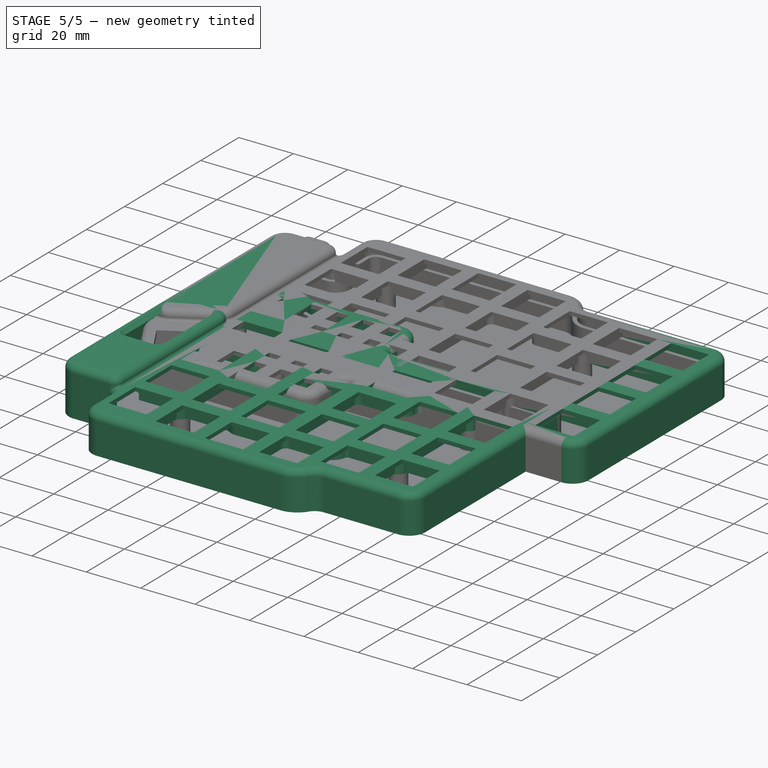
[diagram: stage 5 of 5 — iso view after this stage's code; geometry added in this stage tinted green]
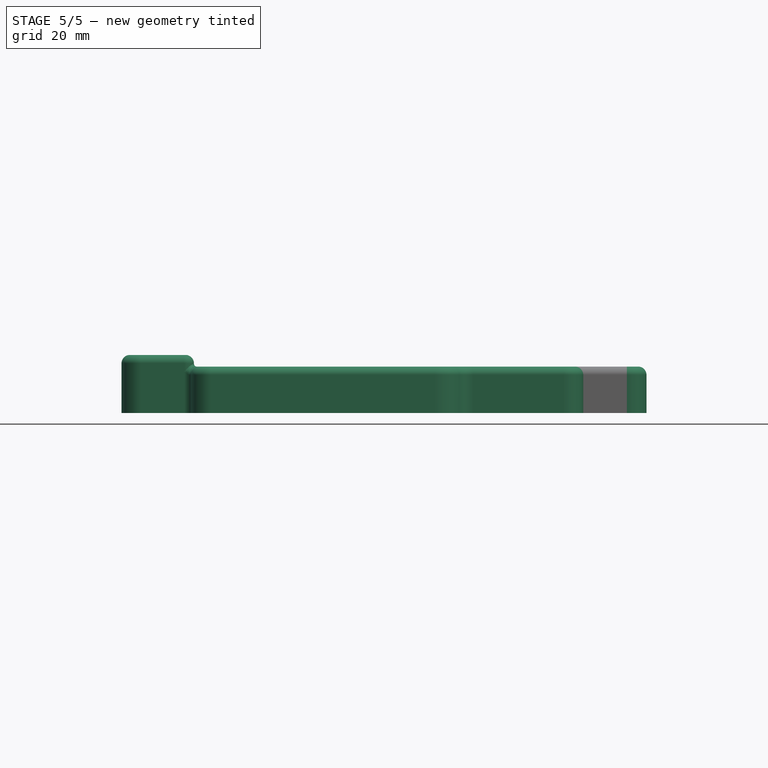
[diagram: stage 5 of 5 — front view after this stage's code; geometry added in this stage tinted green]
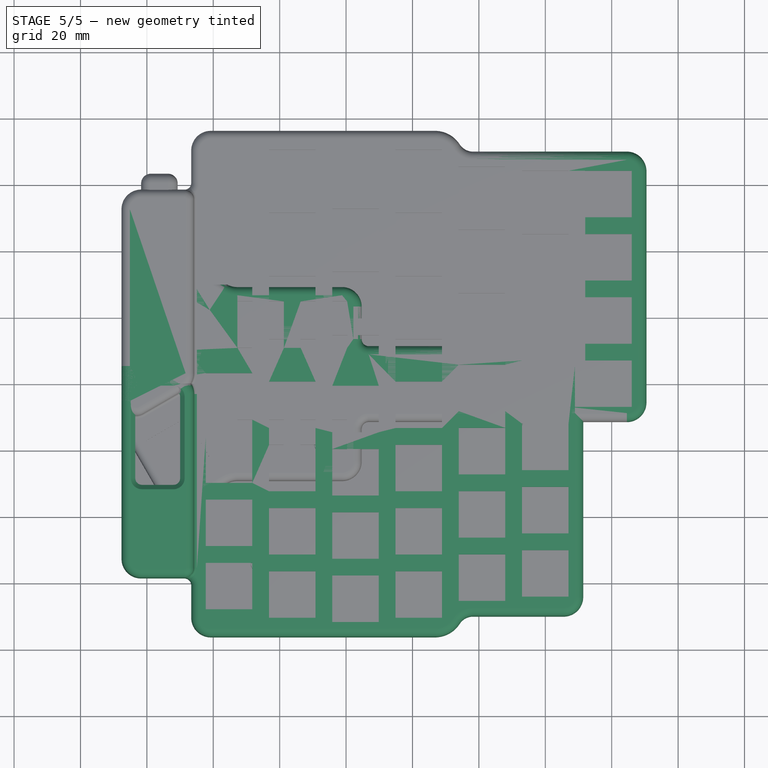
[diagram: stage 5 of 5 — top view after this stage's code; geometry added in this stage tinted green]
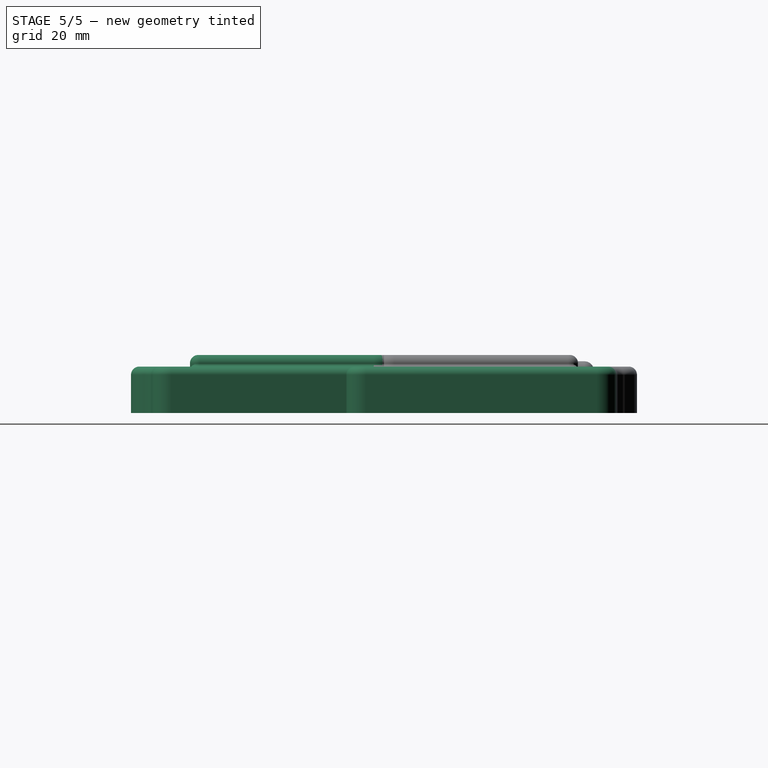
[diagram: stage 5 of 5 — right view after this stage's code; geometry added in this stage tinted green]
FEATURE [Part::Extrusion] Extrude001  label="board_inner_right"
  Base = -> Sketch002
  Dir = (0,0,1)
  DirMode = 2
  FaceMakerClass = Part::FaceMakerBullseye
  LengthFwd = 3.6
  LengthRev = 9
  Solid = true
  Symmetric = false
FEATURE [Part::MultiCommon] Common
  Shapes = -> [Extrude004,Extrude001]
FEATURE [Part::Fuse] Fusion
  Base = -> Common
  Tool = -> Extrude005
FEATURE [Part::Cut] Cut002
  Base = -> Fusion
  Tool = -> Extrude
FEATURE [Part::Cut] Cut003
  Base = -> Cut002
  Tool = -> Extrude003
FEATURE [Part::MultiFuse] Fusion004  label="inner_all"
  Shapes = -> [Extrude006,Extrude001]
FEATURE [Part::Fillet] Fillet006  label="inner_capped"
  Base = -> Fusion004
  Edges = 34 edges: [Edge12 r=1.1,Edge39 r=1.1,Edge43 r=1.1,Edge44 r=1.1,Edge45 r=1.1,Edge46 r=1.1,Edge47 r=1.1,Edge48 r=1.1,Edge49 r=1.1,Edge52 r=1.1,Edge54 r=1.1,Edge56 r=1.1,Edge58 r=1.1,Edge60 r=1.1,Edge62 r=1.1,Edge64 r=1.1,Edge66 r=1.1,Edge68 r=1.1,Edge70 r=1.1,Edge72 r=1.1,Edge74 r=1.1,Edge76 r=1.1,Edge78 r=1.1,Edge80 r=1.1,Edge82 r=1.1,Edge84 r=1.1,Edge86 r=1.1,Edge88 r=1.1,Edge89 r=1.1,Edge90 r=2.3,Edge91 r=2.3,Edge92 r=2.3,Edge93 r=2.3,Edge94 r=2.3]
FEATURE [Part::Thickness] Thickness  label="Full_Cover"
  Faces = -> Fillet006 [Face23]
  Intersection = false
  Join = 0
  Mode = 0
  SelfIntersection = false
  Value = 1.4
FEATURE [Part::Cut] Cut005  label="With_key_cut"
  Base = -> Thickness
  Tool = -> Extrude
FEATURE [Part::MultiFuse] Fusion005  label="Right_complete"
  Shapes = -> [Cut003,Cut005]
FEATURE [Part::Mirroring] Part__Mirroring  label="Left_with_view (Mirror #1)"
  Base = (0,0,-10)
  Normal = (0,0,1)
  Source = -> Chamfer
FEATURE [Part::MultiCommon] Common002  label="Left_reoriented"
  Placement = pos=(0,0,-20) rot=(1,0,0;3.14159rad)
  Shapes = -> [Part__Mirroring,Box]
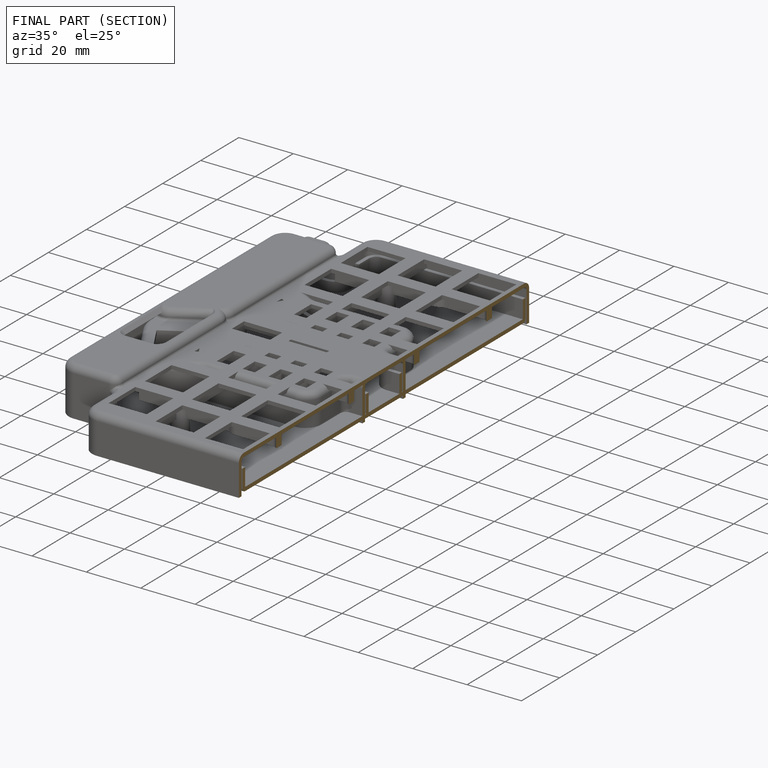
[diagram: finished part — half-section view (interior)]
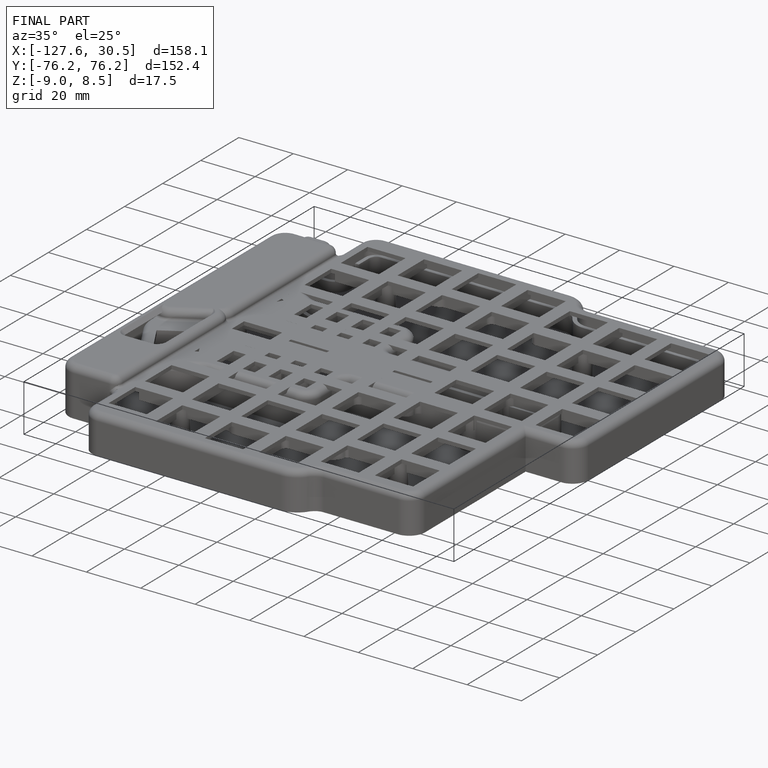
[diagram: finished part — iso view with bounding-box wireframe]
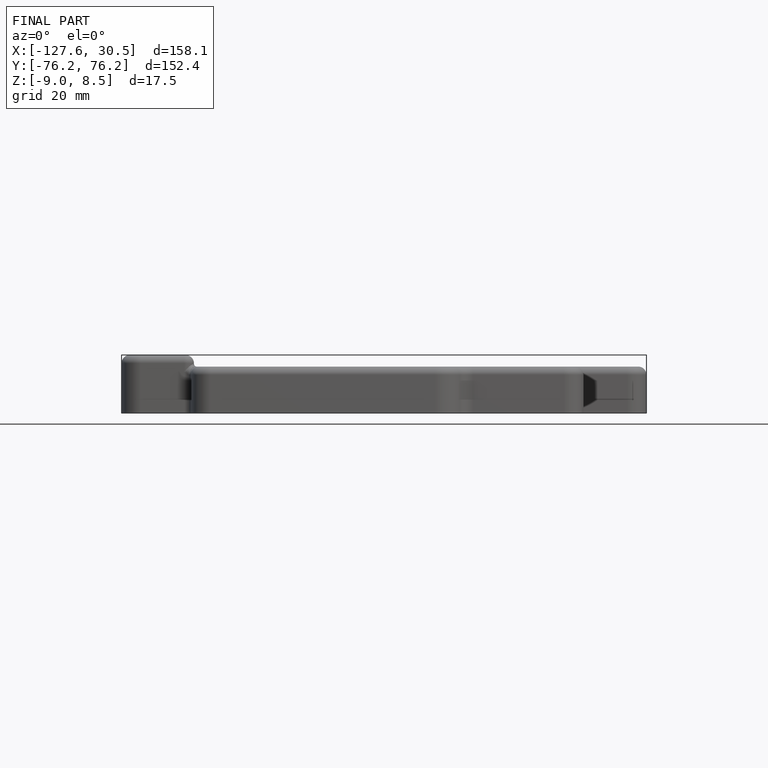
[diagram: finished part — front view with bounding-box wireframe]
